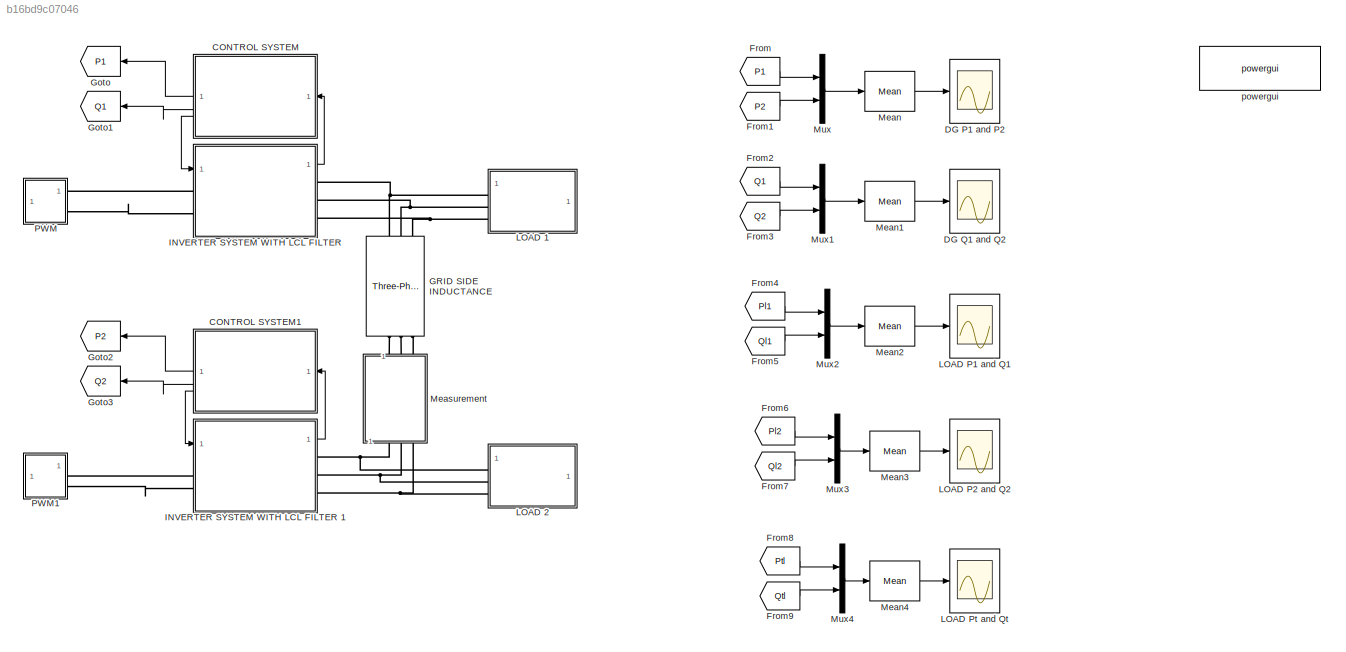
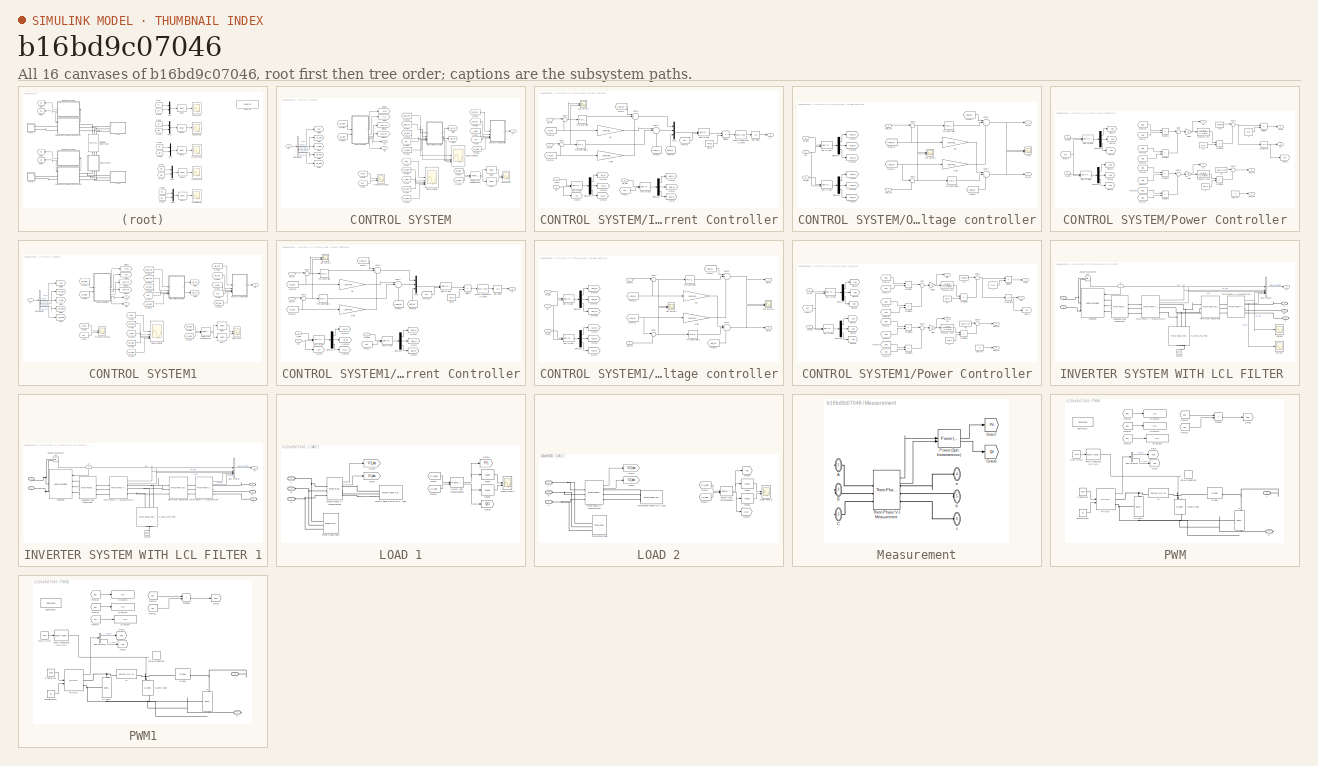
[diagram: thumbnail index - all 16 canvases of the model, root first then tree order]
MODEL slx_b16bd9c07046
KIND model
CONFIG AbsTol = auto
CONFIG EnableMultiTasking = on
CONFIG FixedStep = Ts
CONFIG MaxStep = auto
CONFIG MinStep = auto
CONFIG RelTol = 1e-4
CONFIG SampleTimeConstraint = Unconstrained
CONFIG SolverName = ode3
CONFIG StartTime = 0.0
CONFIG StopTime = 1
BLOCK [SubSystem] CONTROL SYSTEM
  NameLocation = top
BLOCK [BusSelector] CONTROL SYSTEM/Bus Selector
  OutputSignals = Vdc,V0_abc,Il_abc,Vg_abc,Ig_abc
BLOCK [Scope] CONTROL SYSTEM/Frequency and Wt1
  Floating = off
  NumInputPorts = 2
  ScopeSpecificationString = C++SS(StrPVP('Location','[5, 48, 1285, 679]'),StrPVP('Open','off'),MxPVP('AxesTitles',54,'struct(''axes1'',''%<SignalLabel>'',''axes2'',''%<SignalLabel>'')'),MxPVP('ScopeGraphics',57,'struct(''FigureColor'',''[0.5 0.5 0.5]'',''AxesColor'',''[0 0 0]'',''AxesTickColor'',''[1 1 1]'',''LineColors'',''[1 1 0;1 0 1;0 1 1;1 0 0;0 1 0;0 0 1]'',''LineStyles'',''-|-|-|-|-|-'',''LineWidths'',''[0.5 0.5 0.5 0...<+303ch>
BLOCK [From] CONTROL SYSTEM/From1
  GotoTag = Il_abc
BLOCK [From] CONTROL SYSTEM/From10
  GotoTag = Ig_abc
BLOCK [From] CONTROL SYSTEM/From11
  GotoTag = Ig_abc
BLOCK [From] CONTROL SYSTEM/From12
  GotoTag = Ild_ref
BLOCK [From] CONTROL SYSTEM/From13
  GotoTag = Ig_abc
BLOCK [From] CONTROL SYSTEM/From14
  GotoTag = V0d_ref
BLOCK [From] CONTROL SYSTEM/From15
  GotoTag = Vg_abc
BLOCK [From] CONTROL SYSTEM/From16
  GotoTag = Ig_abc
BLOCK [From] CONTROL SYSTEM/From17
  GotoTag = V0q_ref
BLOCK [From] CONTROL SYSTEM/From18
  GotoTag = V0_abc
BLOCK [From] CONTROL SYSTEM/From2
  GotoTag = Wt
BLOCK [From] CONTROL SYSTEM/From21
  GotoTag = V0_abc
BLOCK [From] CONTROL SYSTEM/From22
  GotoTag = Wt
BLOCK [From] CONTROL SYSTEM/From23
  GotoTag = Ilq_ref
BLOCK [From] CONTROL SYSTEM/From3
  GotoTag = Freq
BLOCK [From] CONTROL SYSTEM/From4
  GotoTag = V0_abc
BLOCK [From] CONTROL SYSTEM/From5
  GotoTag = Wt
BLOCK [From] CONTROL SYSTEM/From6
  GotoTag = Vg_abc
BLOCK [From] CONTROL SYSTEM/From7
  GotoTag = Vdc
BLOCK [From] CONTROL SYSTEM/From8
  GotoTag = V0_abc
BLOCK [From] CONTROL SYSTEM/From9
  GotoTag = Il_abc
BLOCK [Outport] CONTROL SYSTEM/G
  Port = 3
BLOCK [Goto] CONTROL SYSTEM/Goto
  GotoTag = V0_abc
BLOCK [Goto] CONTROL SYSTEM/Goto1
  GotoTag = Il_abc
BLOCK [Goto] CONTROL SYSTEM/Goto14
  GotoTag = V0q_ref
BLOCK [Goto] CONTROL SYSTEM/Goto2
  GotoTag = Wt
BLOCK [Goto] CONTROL SYSTEM/Goto20
  GotoTag = V0d_ref
BLOCK [Goto] CONTROL SYSTEM/Goto21
  GotoTag = Freq
  NameLocation = top
BLOCK [Goto] CONTROL SYSTEM/Goto4
  GotoTag = Vg_abc
BLOCK [Goto] CONTROL SYSTEM/Goto5
  GotoTag = Ig_abc
BLOCK [Goto] CONTROL SYSTEM/Goto6
  GotoTag = Vdc
BLOCK [Goto] CONTROL SYSTEM/Goto7
  GotoTag = Ild_ref
BLOCK [Goto] CONTROL SYSTEM/Goto8
  GotoTag = Ilq_ref
BLOCK [SubSystem] CONTROL SYSTEM/Inner Current Controller
BLOCK [Scope] CONTROL SYSTEM/Inner Current Controller/DQ Errors
  Floating = off
  NumInputPorts = 2
  ScopeSpecificationString = C++SS(StrPVP('Location','[5, 48, 1285, 679]'),StrPVP('Open','off'),StrPVP('ZoomMode','xonly'),MxPVP('AxesTitles',54,'struct(''axes1'',''%<SignalLabel>'',''axes2'',''%<SignalLabel>'')'),MxPVP('ScopeGraphics',57,'struct(''FigureColor'',''[0.5 0.5 0.5]'',''AxesColor'',''[0 0 0]'',''AxesTickColor'',''[1 1 1]'',''LineColors'',''[1 1 0;1 0 1;0 1 1;1 0 0;0 1 0;0 0 1]'',''LineStyles'',''-|-|-|-|-|-'',''Li...<+327ch>
BLOCK [Demux] CONTROL SYSTEM/Inner Current Controller/Demux1
  Outputs = 3
BLOCK [Demux] CONTROL SYSTEM/Inner Current Controller/Demux2
  Outputs = 3
BLOCK [Product] CONTROL SYSTEM/Inner Current Controller/Divide2
  Inputs = */
BLOCK [From] CONTROL SYSTEM/Inner Current Controller/From1
  GotoTag = Wt
BLOCK [From] CONTROL SYSTEM/Inner Current Controller/From15
  GotoTag = Wt
BLOCK [From] CONTROL SYSTEM/Inner Current Controller/From19
  GotoTag = Ild_W
BLOCK [From] CONTROL SYSTEM/Inner Current Controller/From2
  GotoTag = Vgd_W
BLOCK [From] CONTROL SYSTEM/Inner Current Controller/From24
  GotoTag = Ilq_W
BLOCK [From] CONTROL SYSTEM/Inner Current Controller/From25
  GotoTag = Vg0_W
  NameLocation = right
BLOCK [From] CONTROL SYSTEM/Inner Current Controller/From3
  GotoTag = Vgq_W
  NameLocation = left
BLOCK [Outport] CONTROL SYSTEM/Inner Current Controller/G
BLOCK [Gain] CONTROL SYSTEM/Inner Current Controller/Gain
  Gain = 2*pi*50*2*10^-3
BLOCK [Goto] CONTROL SYSTEM/Inner Current Controller/Goto1
  GotoTag = Wt
BLOCK [Goto] CONTROL SYSTEM/Inner Current Controller/Goto11
  GotoTag = Ild_W
BLOCK [Goto] CONTROL SYSTEM/Inner Current Controller/Goto12
  GotoTag = Ilq_W
BLOCK [Goto] CONTROL SYSTEM/Inner Current Controller/Goto13
  GotoTag = Il0_W
BLOCK [Goto] CONTROL SYSTEM/Inner Current Controller/Goto3
  GotoTag = Vgd_W
BLOCK [Goto] CONTROL SYSTEM/Inner Current Controller/Goto4
  GotoTag = Vgq_W
BLOCK [Goto] CONTROL SYSTEM/Inner Current Controller/Goto5
  GotoTag = Vg0_W
BLOCK [Inport] CONTROL SYSTEM/Inner Current Controller/Il_abc
  Port = 3
BLOCK [Inport] CONTROL SYSTEM/Inner Current Controller/Ild_ref
BLOCK [Inport] CONTROL SYSTEM/Inner Current Controller/Ilq_ref
  Port = 2
BLOCK [Mux] CONTROL SYSTEM/Inner Current Controller/Mux
  DisplayOption = bar
  Inputs = 3
BLOCK [Reference] CONTROL SYSTEM/Inner Current Controller/PID Controller  REF=slpidlib/PID Controller
  SourceBlock = slpidlib/PID Controller
  SourceType = PID 1dof
BLOCK [Reference] CONTROL SYSTEM/Inner Current Controller/PID Controller1  REF=slpidlib/PID Controller
  SourceBlock = slpidlib/PID Controller
  SourceType = PID 1dof
BLOCK [Reference] CONTROL SYSTEM/Inner Current Controller/PWM Generator (2-Level)  REF=spsPWMGenerator2LevelLib/PWM Generator
(2-Level)
  LibrarySourceBlock = sps_lib/Power Electronics/Power Electronics Control/PWM Generator\n(2-Level)
  SourceBlock = spsPWMGenerator2LevelLib/PWM Generator\n(2-Level)
  SourceType = PWM Generator (2-Level)
BLOCK [Sum] CONTROL SYSTEM/Inner Current Controller/Sum1
  Inputs = |+-
BLOCK [Sum] CONTROL SYSTEM/Inner Current Controller/Sum2
  Inputs = |+-
BLOCK [Sum] CONTROL SYSTEM/Inner Current Controller/Sum3
  Inputs = |++-
BLOCK [Sum] CONTROL SYSTEM/Inner Current Controller/Sum4
  Inputs = |+++
BLOCK [UnitDelay] CONTROL SYSTEM/Inner Current Controller/Unit Delay
  HasFrameUpgradeWarning = on
  SampleTime = -1
BLOCK [Constant] CONTROL SYSTEM/Inner Current Controller/Vdc//2
  SampleTime = Ts
  Value = 700/2
BLOCK [Inport] CONTROL SYSTEM/Inner Current Controller/Vg_abc
  Port = 5
BLOCK [Inport] CONTROL SYSTEM/Inner Current Controller/Wt
  Port = 4
BLOCK [Reference] CONTROL SYSTEM/Inner Current Controller/abc to dq0  REF=spsabctodq0Lib/abc to dq0
  LibrarySourceBlock = sps_lib/Control/abc to dq0
  SourceBlock = spsabctodq0Lib/abc to dq0
  SourceType = abc to dq0 Transformation
BLOCK [Reference] CONTROL SYSTEM/Inner Current Controller/abc to dq1  REF=spsabctodq0Lib/abc to dq0
  LibrarySourceBlock = sps_lib/Control/abc to dq0
  SourceBlock = spsabctodq0Lib/abc to dq0
  SourceType = abc to dq0 Transformation
BLOCK [Reference] CONTROL SYSTEM/Inner Current Controller/dq0 to abc  REF=spsdq0toabcLib/dq0 to abc
  LibrarySourceBlock = sps_lib/Control/dq0 to abc
  SourceBlock = spsdq0toabcLib/dq0 to abc
  SourceType = dq0 to abc Transformation
BLOCK [Gain] CONTROL SYSTEM/Inner Current Controller/wL
  Gain = 2*pi*50*2*10^-3
BLOCK [Inport] CONTROL SYSTEM/M
BLOCK [Reference] CONTROL SYSTEM/Mean  REF=spsMeanLib/Mean
  LibrarySourceBlock = sps_lib/Sensors and Measurements/Mean
  SourceBlock = spsMeanLib/Mean
  SourceType = Mean
BLOCK [Scope] CONTROL SYSTEM/Mean Pand Q
  Floating = off
  NumInputPorts = 2
  ScopeSpecificationString = C++SS(StrPVP('Location','[5, 48, 1285, 679]'),StrPVP('Open','off'),StrPVP('ZoomMode','yonly'),MxPVP('AxesTitles',54,'struct(''axes1'',''%<SignalLabel>'',''axes2'',''%<SignalLabel>'')'),MxPVP('ScopeGraphics',57,'struct(''FigureColor'',''[0.5 0.5 0.5]'',''AxesColor'',''[0 0 0]'',''AxesTickColor'',''[1 1 1]'',''LineColors'',''[1 1 0;1 0 1;0 1 1;1 0 0;0 1 0;0 0 1]'',''LineStyles'',''-|-|-|-|-|-'',''Li...<+331ch>  <repeated x3 — deduplicated; at blocks: Mean Pand Q, DQ Errors>
BLOCK [Reference] CONTROL SYSTEM/Mean1  REF=spsMeanLib/Mean
  LibrarySourceBlock = sps_lib/Sensors and Measurements/Mean
  SourceBlock = spsMeanLib/Mean
  SourceType = Mean
BLOCK [Scope] CONTROL SYSTEM/Measurements
  Floating = off
  NumInputPorts = 5
  ScopeSpecificationString = C++SS(StrPVP('Location','[6, 48, 1286, 679]'),StrPVP('Open','off'),StrPVP('ZoomMode','yonly'),MxPVP('AxesTitles',54,'struct(''axes1'',''%<SignalLabel>'',''axes2'',''%<SignalLabel>'',''axes3'',''%<SignalLabel>'',''axes4'',''%<SignalLabel>'',''axes5'',''%<SignalLabel>'')'),MxPVP('ScopeGraphics',57,'struct(''FigureColor'',''[0.5 0.5 0.5]'',''AxesColor'',''[0 0 0]'',''AxesTickColor'',''[1 1 1]'',''Lin...<+408ch>
BLOCK [Scope] CONTROL SYSTEM/Measurements1
  Floating = off
  NumInputPorts = 5
  ScopeSpecificationString = C++SS(StrPVP('Location','[6, 48, 1286, 679]'),StrPVP('Open','off'),StrPVP('ZoomMode','yonly'),MxPVP('AxesTitles',54,'struct(''axes1'',''%<SignalLabel>'',''axes2'',''%<SignalLabel>'',''axes3'',''%<SignalLabel>'',''axes4'',''%<SignalLabel>'',''axes5'',''%<SignalLabel>'')'),MxPVP('ScopeGraphics',57,'struct(''FigureColor'',''[0.5 0.5 0.5]'',''AxesColor'',''[0 0 0]'',''AxesTickColor'',''[1 1 1]'',''Lin...<+441ch>
BLOCK [SubSystem] CONTROL SYSTEM/Outer Voltage controller
BLOCK [Scope] CONTROL SYSTEM/Outer Voltage controller/DQ Errors
  Floating = off
  NumInputPorts = 2
BLOCK [Demux] CONTROL SYSTEM/Outer Voltage controller/Demux1
  Outputs = 3
BLOCK [Demux] CONTROL SYSTEM/Outer Voltage controller/Demux4
  Outputs = 3
BLOCK [From] CONTROL SYSTEM/Outer Voltage controller/From1
  GotoTag = Igd_W
BLOCK [From] CONTROL SYSTEM/Outer Voltage controller/From12
  GotoTag = V0d_W
BLOCK [From] CONTROL SYSTEM/Outer Voltage controller/From2
  GotoTag = Igq_W
BLOCK [From] CONTROL SYSTEM/Outer Voltage controller/From23
  GotoTag = V0q_W
BLOCK [Gain] CONTROL SYSTEM/Outer Voltage controller/Gain
  Gain = 2*pi*50*15*10^-6
BLOCK [Goto] CONTROL SYSTEM/Outer Voltage controller/Goto1
  GotoTag = Igd_W
BLOCK [Goto] CONTROL SYSTEM/Outer Voltage controller/Goto17
  GotoTag = V0d_W
BLOCK [Goto] CONTROL SYSTEM/Outer Voltage controller/Goto18
  GotoTag = V0q_W
BLOCK [Goto] CONTROL SYSTEM/Outer Voltage controller/Goto19
  GotoTag = V00_W
BLOCK [Goto] CONTROL SYSTEM/Outer Voltage controller/Goto2
  GotoTag = Igq_W
BLOCK [Goto] CONTROL SYSTEM/Outer Voltage controller/Goto3
  GotoTag = Ig0_W
BLOCK [Inport] CONTROL SYSTEM/Outer Voltage controller/Ig_abc
  Port = 5
BLOCK [Scope] CONTROL SYSTEM/Outer Voltage controller/Il ref
  Floating = off
  NumInputPorts = 2
  ScopeSpecificationString = C++SS(StrPVP('Location','[5, 48, 1285, 679]'),StrPVP('Open','off'),StrPVP('ZoomMode','yonly'),MxPVP('AxesTitles',54,'struct(''axes1'',''%<SignalLabel>'',''axes2'',''%<SignalLabel>'')'),MxPVP('ScopeGraphics',57,'struct(''FigureColor'',''[0.5 0.5 0.5]'',''AxesColor'',''[0 0 0]'',''AxesTickColor'',''[1 1 1]'',''LineColors'',''[1 1 0;1 0 1;0 1 1;1 0 0;0 1 0;0 0 1]'',''LineStyles'',''-|-|-|-|-|-'',''Li...<+336ch>
BLOCK [Outport] CONTROL SYSTEM/Outer Voltage controller/Ild_ref
BLOCK [Outport] CONTROL SYSTEM/Outer Voltage controller/Ilq_ref
  Port = 2
BLOCK [Reference] CONTROL SYSTEM/Outer Voltage controller/PID Controller  REF=slpidlib/PID Controller
  SourceBlock = slpidlib/PID Controller
  SourceType = PID 1dof
BLOCK [Reference] CONTROL SYSTEM/Outer Voltage controller/PID Controller1  REF=slpidlib/PID Controller
  SourceBlock = slpidlib/PID Controller
  SourceType = PID 1dof
BLOCK [Sum] CONTROL SYSTEM/Outer Voltage controller/Sum1
  Inputs = |-+
BLOCK [Sum] CONTROL SYSTEM/Outer Voltage controller/Sum2
  Inputs = |+-
BLOCK [Sum] CONTROL SYSTEM/Outer Voltage controller/Sum3
  Inputs = |++-
BLOCK [Sum] CONTROL SYSTEM/Outer Voltage controller/Sum4
  Inputs = |+++
BLOCK [Inport] CONTROL SYSTEM/Outer Voltage controller/V0_abc
  Port = 3
BLOCK [Inport] CONTROL SYSTEM/Outer Voltage controller/V0d_ref
BLOCK [Inport] CONTROL SYSTEM/Outer Voltage controller/V0q_ref
  Port = 2
BLOCK [Inport] CONTROL SYSTEM/Outer Voltage controller/Wt
  Port = 4
BLOCK [Reference] CONTROL SYSTEM/Outer Voltage controller/abc to dq1  REF=spsabctodq0Lib/abc to dq0
  LibrarySourceBlock = sps_lib/Control/abc to dq0
  SourceBlock = spsabctodq0Lib/abc to dq0
  SourceType = abc to dq0 Transformation
BLOCK [Reference] CONTROL SYSTEM/Outer Voltage controller/abc to dq3  REF=spsabctodq0Lib/abc to dq0
  LibrarySourceBlock = sps_lib/Control/abc to dq0
  SourceBlock = spsabctodq0Lib/abc to dq0
  SourceType = abc to dq0 Transformation
BLOCK [Gain] CONTROL SYSTEM/Outer Voltage controller/wC
  Gain = 2*pi*50*15*10^-6
BLOCK [Outport] CONTROL SYSTEM/P1
BLOCK [Reference] CONTROL SYSTEM/Power (3ph, Instantaneous)  REF=spsPower3phInstantaneousLib/Power
(3ph, Instantaneous)
  LibrarySourceBlock = sps_lib/Sensors and Measurements/Power\n(3ph, Instantaneous)
  SourceBlock = spsPower3phInstantaneousLib/Power\n(3ph, Instantaneous)
  SourceType = Power (3ph, Instantaneous)
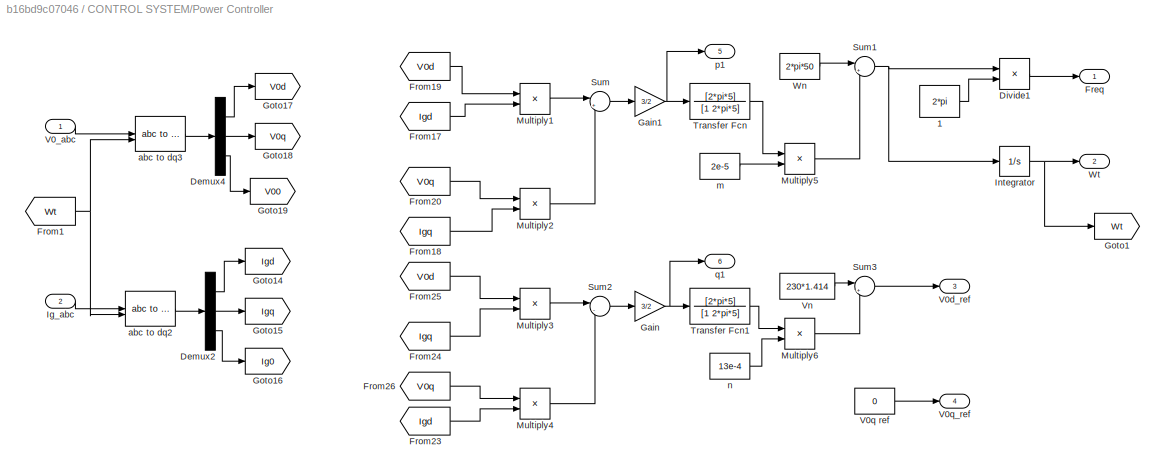
BLOCK [SubSystem] CONTROL SYSTEM/Power Controller
BLOCK [Constant] CONTROL SYSTEM/Power Controller/1
  NameLocation = top
  SampleTime = Ts
  Value = 2*pi
BLOCK [Demux] CONTROL SYSTEM/Power Controller/Demux2
  Outputs = 3
BLOCK [Demux] CONTROL SYSTEM/Power Controller/Demux4
  Outputs = 3
BLOCK [Product] CONTROL SYSTEM/Power Controller/Divide1
  Inputs = */
  NameLocation = top
BLOCK [Outport] CONTROL SYSTEM/Power Controller/Freq
BLOCK [From] CONTROL SYSTEM/Power Controller/From1
  GotoTag = Wt
  NameLocation = top
BLOCK [From] CONTROL SYSTEM/Power Controller/From17
  GotoTag = Igd
BLOCK [From] CONTROL SYSTEM/Power Controller/From18
  GotoTag = Igq
  NameLocation = top
BLOCK [From] CONTROL SYSTEM/Power Controller/From19
  GotoTag = V0d
BLOCK [From] CONTROL SYSTEM/Power Controller/From20
  GotoTag = V0q
  NameLocation = top
BLOCK [From] CONTROL SYSTEM/Power Controller/From23
  GotoTag = Igd
BLOCK [From] CONTROL SYSTEM/Power Controller/From24
  GotoTag = Igq
  NameLocation = top
BLOCK [From] CONTROL SYSTEM/Power Controller/From25
  GotoTag = V0d
BLOCK [From] CONTROL SYSTEM/Power Controller/From26
  GotoTag = V0q
  NameLocation = top
BLOCK [Gain] CONTROL SYSTEM/Power Controller/Gain
  Gain = 3/2
BLOCK [Gain] CONTROL SYSTEM/Power Controller/Gain1
  Gain = 3/2
BLOCK [Goto] CONTROL SYSTEM/Power Controller/Goto1
  GotoTag = Wt
BLOCK [Goto] CONTROL SYSTEM/Power Controller/Goto14
  GotoTag = Igd
BLOCK [Goto] CONTROL SYSTEM/Power Controller/Goto15
  GotoTag = Igq
BLOCK [Goto] CONTROL SYSTEM/Power Controller/Goto16
  GotoTag = Ig0
BLOCK [Goto] CONTROL SYSTEM/Power Controller/Goto17
  GotoTag = V0d
BLOCK [Goto] CONTROL SYSTEM/Power Controller/Goto18
  GotoTag = V0q
BLOCK [Goto] CONTROL SYSTEM/Power Controller/Goto19
  GotoTag = V00
BLOCK [Inport] CONTROL SYSTEM/Power Controller/Ig_abc
  Port = 2
BLOCK [Integrator] CONTROL SYSTEM/Power Controller/Integrator
BLOCK [Product] CONTROL SYSTEM/Power Controller/Multiply1
  Inputs = **
BLOCK [Product] CONTROL SYSTEM/Power Controller/Multiply2
  Inputs = **
BLOCK [Product] CONTROL SYSTEM/Power Controller/Multiply3
  Inputs = **
BLOCK [Product] CONTROL SYSTEM/Power Controller/Multiply4
  Inputs = **
BLOCK [Product] CONTROL SYSTEM/Power Controller/Multiply5
  Inputs = **
BLOCK [Product] CONTROL SYSTEM/Power Controller/Multiply6
  Inputs = **
BLOCK [Sum] CONTROL SYSTEM/Power Controller/Sum
  Inputs = |++
BLOCK [Sum] CONTROL SYSTEM/Power Controller/Sum1
  Inputs = |+-
BLOCK [Sum] CONTROL SYSTEM/Power Controller/Sum2
  Inputs = |-+
BLOCK [Sum] CONTROL SYSTEM/Power Controller/Sum3
  Inputs = |+-
BLOCK [TransferFcn] CONTROL SYSTEM/Power Controller/Transfer Fcn
  Denominator = [1 2*pi*5]
  Numerator = [2*pi*5]
BLOCK [TransferFcn] CONTROL SYSTEM/Power Controller/Transfer Fcn1
  Denominator = [1 2*pi*5]
  Numerator = [2*pi*5]
BLOCK [Inport] CONTROL SYSTEM/Power Controller/V0_abc
BLOCK [Outport] CONTROL SYSTEM/Power Controller/V0d_ref
  Port = 3
BLOCK [Constant] CONTROL SYSTEM/Power Controller/V0q ref
  SampleTime = Ts
  Value = 0
BLOCK [Outport] CONTROL SYSTEM/Power Controller/V0q_ref
  Port = 4
BLOCK [Constant] CONTROL SYSTEM/Power Controller/Vn
  SampleTime = Ts
  Value = 230*1.414
BLOCK [Constant] CONTROL SYSTEM/Power Controller/Wn
  SampleTime = Ts
  Value = 2*pi*50
BLOCK [Outport] CONTROL SYSTEM/Power Controller/Wt
  Port = 2
BLOCK [Reference] CONTROL SYSTEM/Power Controller/abc to dq2  REF=spsabctodq0Lib/abc to dq0
  LibrarySourceBlock = sps_lib/Control/abc to dq0
  SourceBlock = spsabctodq0Lib/abc to dq0
  SourceType = abc to dq0 Transformation
BLOCK [Reference] CONTROL SYSTEM/Power Controller/abc to dq3  REF=spsabctodq0Lib/abc to dq0
  LibrarySourceBlock = sps_lib/Control/abc to dq0
  SourceBlock = spsabctodq0Lib/abc to dq0
  SourceType = abc to dq0 Transformation
BLOCK [Constant] CONTROL SYSTEM/Power Controller/m
  SampleTime = Ts
  Value = 2e-5
BLOCK [Constant] CONTROL SYSTEM/Power Controller/n
  SampleTime = Ts
  Value = 13e-4
BLOCK [Outport] CONTROL SYSTEM/Power Controller/p1
  Port = 5
BLOCK [Outport] CONTROL SYSTEM/Power Controller/q1
  Port = 6
BLOCK [Outport] CONTROL SYSTEM/Q1
  Port = 2
BLOCK [SubSystem] CONTROL SYSTEM1
  NameLocation = top
BLOCK [BusSelector] CONTROL SYSTEM1/Bus Selector
  OutputSignals = Vdc,V0_abc,Il_abc,Vg_abc,Ig_abc
BLOCK [Scope] CONTROL SYSTEM1/Frequency and Wt1
  Floating = off
  NumInputPorts = 2
  ScopeSpecificationString = C++SS(StrPVP('Location','[1, 48, 1281, 679]'),StrPVP('Open','off'),MxPVP('AxesTitles',54,'struct(''axes1'',''%<SignalLabel>'',''axes2'',''%<SignalLabel>'')'),MxPVP('ScopeGraphics',57,'struct(''FigureColor'',''[0.5 0.5 0.5]'',''AxesColor'',''[0 0 0]'',''AxesTickColor'',''[1 1 1]'',''LineColors'',''[1 1 0;1 0 1;0 1 1;1 0 0;0 1 0;0 0 1]'',''LineStyles'',''-|-|-|-|-|-'',''LineWidths'',''[0.5 0.5 0.5 0...<+303ch>
BLOCK [From] CONTROL SYSTEM1/From1
  GotoTag = Il_abc
BLOCK [From] CONTROL SYSTEM1/From10
  GotoTag = Ig_abc
BLOCK [From] CONTROL SYSTEM1/From11
  GotoTag = Ig_abc
BLOCK [From] CONTROL SYSTEM1/From12
  GotoTag = Ild_ref
BLOCK [From] CONTROL SYSTEM1/From13
  GotoTag = Ig_abc
BLOCK [From] CONTROL SYSTEM1/From14
  GotoTag = V0d_ref
BLOCK [From] CONTROL SYSTEM1/From15
  GotoTag = Vg_abc
BLOCK [From] CONTROL SYSTEM1/From16
  GotoTag = Ig_abc
BLOCK [From] CONTROL SYSTEM1/From17
  GotoTag = V0q_ref
BLOCK [From] CONTROL SYSTEM1/From18
  GotoTag = V0_abc
BLOCK [From] CONTROL SYSTEM1/From2
  GotoTag = Wt
BLOCK [From] CONTROL SYSTEM1/From21
  GotoTag = V0_abc
BLOCK [From] CONTROL SYSTEM1/From22
  GotoTag = Wt
BLOCK [From] CONTROL SYSTEM1/From23
  GotoTag = Ilq_ref
BLOCK [From] CONTROL SYSTEM1/From3
  GotoTag = Freq
BLOCK [From] CONTROL SYSTEM1/From4
  GotoTag = V0_abc
BLOCK [From] CONTROL SYSTEM1/From5
  GotoTag = Wt
BLOCK [From] CONTROL SYSTEM1/From6
  GotoTag = Vg_abc
BLOCK [From] CONTROL SYSTEM1/From7
  GotoTag = Vdc
BLOCK [From] CONTROL SYSTEM1/From8
  GotoTag = V0_abc
BLOCK [From] CONTROL SYSTEM1/From9
  GotoTag = Il_abc
BLOCK [Outport] CONTROL SYSTEM1/G
  Port = 3
BLOCK [Goto] CONTROL SYSTEM1/Goto
  GotoTag = V0_abc
BLOCK [Goto] CONTROL SYSTEM1/Goto1
  GotoTag = Il_abc
BLOCK [Goto] CONTROL SYSTEM1/Goto14
  GotoTag = V0q_ref
BLOCK [Goto] CONTROL SYSTEM1/Goto2
  GotoTag = Wt
BLOCK [Goto] CONTROL SYSTEM1/Goto20
  GotoTag = V0d_ref
BLOCK [Goto] CONTROL SYSTEM1/Goto21
  GotoTag = Freq
  NameLocation = top
BLOCK [Goto] CONTROL SYSTEM1/Goto4
  GotoTag = Vg_abc
BLOCK [Goto] CONTROL SYSTEM1/Goto5
  GotoTag = Ig_abc
BLOCK [Goto] CONTROL SYSTEM1/Goto6
  GotoTag = Vdc
BLOCK [Goto] CONTROL SYSTEM1/Goto7
  GotoTag = Ild_ref
BLOCK [Goto] CONTROL SYSTEM1/Goto8
  GotoTag = Ilq_ref
BLOCK [SubSystem] CONTROL SYSTEM1/Inner Current Controller
BLOCK [Scope] CONTROL SYSTEM1/Inner Current Controller/DQ Errors
  Floating = off
  NumInputPorts = 2
  ScopeSpecificationString = C++SS(StrPVP('Location','[1, 48, 1281, 679]'),StrPVP('Open','off'),StrPVP('ZoomMode','xonly'),MxPVP('AxesTitles',54,'struct(''axes1'',''%<SignalLabel>'',''axes2'',''%<SignalLabel>'')'),MxPVP('ScopeGraphics',57,'struct(''FigureColor'',''[0.5 0.5 0.5]'',''AxesColor'',''[0 0 0]'',''AxesTickColor'',''[1 1 1]'',''LineColors'',''[1 1 0;1 0 1;0 1 1;1 0 0;0 1 0;0 0 1]'',''LineStyles'',''-|-|-|-|-|-'',''Li...<+327ch>
BLOCK [Demux] CONTROL SYSTEM1/Inner Current Controller/Demux1
  Outputs = 3
BLOCK [Demux] CONTROL SYSTEM1/Inner Current Controller/Demux2
  Outputs = 3
BLOCK [Product] CONTROL SYSTEM1/Inner Current Controller/Divide2
  Inputs = */
BLOCK [From] CONTROL SYSTEM1/Inner Current Controller/From1
  GotoTag = Wt
BLOCK [From] CONTROL SYSTEM1/Inner Current Controller/From15
  GotoTag = Wt
BLOCK [From] CONTROL SYSTEM1/Inner Current Controller/From19
  GotoTag = Ild_W
BLOCK [From] CONTROL SYSTEM1/Inner Current Controller/From2
  GotoTag = Vgd_W
BLOCK [From] CONTROL SYSTEM1/Inner Current Controller/From24
  GotoTag = Ilq_W
BLOCK [From] CONTROL SYSTEM1/Inner Current Controller/From25
  GotoTag = Vg0_W
  NameLocation = right
BLOCK [From] CONTROL SYSTEM1/Inner Current Controller/From3
  GotoTag = Vgq_W
  NameLocation = left
BLOCK [Outport] CONTROL SYSTEM1/Inner Current Controller/G
BLOCK [Gain] CONTROL SYSTEM1/Inner Current Controller/Gain
  Gain = 2*pi*50*2*10^-3
BLOCK [Goto] CONTROL SYSTEM1/Inner Current Controller/Goto1
  GotoTag = Wt
BLOCK [Goto] CONTROL SYSTEM1/Inner Current Controller/Goto11
  GotoTag = Ild_W
BLOCK [Goto] CONTROL SYSTEM1/Inner Current Controller/Goto12
  GotoTag = Ilq_W
BLOCK [Goto] CONTROL SYSTEM1/Inner Current Controller/Goto13
  GotoTag = Il0_W
BLOCK [Goto] CONTROL SYSTEM1/Inner Current Controller/Goto3
  GotoTag = Vgd_W
BLOCK [Goto] CONTROL SYSTEM1/Inner Current Controller/Goto4
  GotoTag = Vgq_W
BLOCK [Goto] CONTROL SYSTEM1/Inner Current Controller/Goto5
  GotoTag = Vg0_W
BLOCK [Inport] CONTROL SYSTEM1/Inner Current Controller/Il_abc
  Port = 3
BLOCK [Inport] CONTROL SYSTEM1/Inner Current Controller/Ild_ref
BLOCK [Inport] CONTROL SYSTEM1/Inner Current Controller/Ilq_ref
  Port = 2
BLOCK [Mux] CONTROL SYSTEM1/Inner Current Controller/Mux
  DisplayOption = bar
  Inputs = 3
BLOCK [Reference] CONTROL SYSTEM1/Inner Current Controller/PID Controller  REF=slpidlib/PID Controller
  SourceBlock = slpidlib/PID Controller
  SourceType = PID 1dof
BLOCK [Reference] CONTROL SYSTEM1/Inner Current Controller/PID Controller1  REF=slpidlib/PID Controller
  SourceBlock = slpidlib/PID Controller
  SourceType = PID 1dof
BLOCK [Reference] CONTROL SYSTEM1/Inner Current Controller/PWM Generator (2-Level)  REF=spsPWMGenerator2LevelLib/PWM Generator
(2-Level)
  LibrarySourceBlock = sps_lib/Power Electronics/Power Electronics Control/PWM Generator\n(2-Level)
  SourceBlock = spsPWMGenerator2LevelLib/PWM Generator\n(2-Level)
  SourceType = PWM Generator (2-Level)
BLOCK [Sum] CONTROL SYSTEM1/Inner Current Controller/Sum1
  Inputs = |+-
BLOCK [Sum] CONTROL SYSTEM1/Inner Current Controller/Sum2
  Inputs = |+-
BLOCK [Sum] CONTROL SYSTEM1/Inner Current Controller/Sum3
  Inputs = |++-
BLOCK [Sum] CONTROL SYSTEM1/Inner Current Controller/Sum4
  Inputs = |+++
BLOCK [UnitDelay] CONTROL SYSTEM1/Inner Current Controller/Unit Delay
  HasFrameUpgradeWarning = on
  SampleTime = -1
BLOCK [Constant] CONTROL SYSTEM1/Inner Current Controller/Vdc//2
  SampleTime = Ts
  Value = 700/2
BLOCK [Inport] CONTROL SYSTEM1/Inner Current Controller/Vg_abc
  Port = 5
BLOCK [Inport] CONTROL SYSTEM1/Inner Current Controller/Wt
  Port = 4
BLOCK [Reference] CONTROL SYSTEM1/Inner Current Controller/abc to dq0  REF=spsabctodq0Lib/abc to dq0
  LibrarySourceBlock = sps_lib/Control/abc to dq0
  SourceBlock = spsabctodq0Lib/abc to dq0
  SourceType = abc to dq0 Transformation
BLOCK [Reference] CONTROL SYSTEM1/Inner Current Controller/abc to dq1  REF=spsabctodq0Lib/abc to dq0
  LibrarySourceBlock = sps_lib/Control/abc to dq0
  SourceBlock = spsabctodq0Lib/abc to dq0
  SourceType = abc to dq0 Transformation
BLOCK [Reference] CONTROL SYSTEM1/Inner Current Controller/dq0 to abc  REF=spsdq0toabcLib/dq0 to abc
  LibrarySourceBlock = sps_lib/Control/dq0 to abc
  SourceBlock = spsdq0toabcLib/dq0 to abc
  SourceType = dq0 to abc Transformation
BLOCK [Gain] CONTROL SYSTEM1/Inner Current Controller/wL
  Gain = 2*pi*50*2*10^-3
BLOCK [Inport] CONTROL SYSTEM1/M
BLOCK [Reference] CONTROL SYSTEM1/Mean  REF=spsMeanLib/Mean
  LibrarySourceBlock = sps_lib/Sensors and Measurements/Mean
  SourceBlock = spsMeanLib/Mean
  SourceType = Mean
BLOCK [Scope] CONTROL SYSTEM1/Mean Pand Q
  Floating = off
  NumInputPorts = 2
  ScopeSpecificationString = C++SS(StrPVP('Location','[1, 48, 1281, 679]'),StrPVP('Open','off'),StrPVP('ZoomMode','yonly'),MxPVP('AxesTitles',54,'struct(''axes1'',''%<SignalLabel>'',''axes2'',''%<SignalLabel>'')'),MxPVP('ScopeGraphics',57,'struct(''FigureColor'',''[0.5 0.5 0.5]'',''AxesColor'',''[0 0 0]'',''AxesTickColor'',''[1 1 1]'',''LineColors'',''[1 1 0;1 0 1;0 1 1;1 0 0;0 1 0;0 0 1]'',''LineStyles'',''-|-|-|-|-|-'',''Li...<+335ch>
BLOCK [Reference] CONTROL SYSTEM1/Mean1  REF=spsMeanLib/Mean
  LibrarySourceBlock = sps_lib/Sensors and Measurements/Mean
  SourceBlock = spsMeanLib/Mean
  SourceType = Mean
BLOCK [Scope] CONTROL SYSTEM1/Measurements
  Floating = off
  NumInputPorts = 5
  ScopeSpecificationString = C++SS(StrPVP('Location','[5, 48, 1285, 679]'),StrPVP('Open','off'),StrPVP('ZoomMode','yonly'),MxPVP('AxesTitles',54,'struct(''axes1'',''%<SignalLabel>'',''axes2'',''%<SignalLabel>'',''axes3'',''%<SignalLabel>'',''axes4'',''%<SignalLabel>'',''axes5'',''%<SignalLabel>'')'),MxPVP('ScopeGraphics',57,'struct(''FigureColor'',''[0.5 0.5 0.5]'',''AxesColor'',''[0 0 0]'',''AxesTickColor'',''[1 1 1]'',''Lin...<+408ch>
BLOCK [SubSystem] CONTROL SYSTEM1/Outer Voltage controller
BLOCK [Scope] CONTROL SYSTEM1/Outer Voltage controller/DQ Errors
  Floating = off
  NumInputPorts = 2
  ScopeSpecificationString = C++SS(StrPVP('Location','[1, 48, 1281, 679]'),StrPVP('Open','off'),StrPVP('ZoomMode','yonly'),MxPVP('AxesTitles',54,'struct(''axes1'',''%<SignalLabel>'',''axes2'',''%<SignalLabel>'')'),MxPVP('ScopeGraphics',57,'struct(''FigureColor'',''[0.5 0.5 0.5]'',''AxesColor'',''[0 0 0]'',''AxesTickColor'',''[1 1 1]'',''LineColors'',''[1 1 0;1 0 1;0 1 1;1 0 0;0 1 0;0 0 1]'',''LineStyles'',''-|-|-|-|-|-'',''Li...<+331ch>
BLOCK [Scope] CONTROL SYSTEM1/Outer Voltage controller/DQ Errors1
  Floating = off
  NumInputPorts = 2
  ScopeSpecificationString = C++SS(StrPVP('Location','[5, 48, 1285, 679]'),StrPVP('Open','off'),StrPVP('ZoomMode','yonly'),MxPVP('AxesTitles',54,'struct(''axes1'',''%<SignalLabel>'',''axes2'',''%<SignalLabel>'')'),MxPVP('ScopeGraphics',57,'struct(''FigureColor'',''[0.5 0.5 0.5]'',''AxesColor'',''[0 0 0]'',''AxesTickColor'',''[1 1 1]'',''LineColors'',''[1 1 0;1 0 1;0 1 1;1 0 0;0 1 0;0 0 1]'',''LineStyles'',''-|-|-|-|-|-'',''Li...<+336ch>
BLOCK [Demux] CONTROL SYSTEM1/Outer Voltage controller/Demux1
  Outputs = 3
BLOCK [Demux] CONTROL SYSTEM1/Outer Voltage controller/Demux4
  Outputs = 3
BLOCK [From] CONTROL SYSTEM1/Outer Voltage controller/From1
  GotoTag = Igd_W
BLOCK [From] CONTROL SYSTEM1/Outer Voltage controller/From12
  GotoTag = V0d_W
BLOCK [From] CONTROL SYSTEM1/Outer Voltage controller/From2
  GotoTag = Igq_W
BLOCK [From] CONTROL SYSTEM1/Outer Voltage controller/From23
  GotoTag = V0q_W
BLOCK [Gain] CONTROL SYSTEM1/Outer Voltage controller/Gain
  Gain = 2*pi*50*15*10^-6
BLOCK [Goto] CONTROL SYSTEM1/Outer Voltage controller/Goto1
  GotoTag = Igd_W
BLOCK [Goto] CONTROL SYSTEM1/Outer Voltage controller/Goto17
  GotoTag = V0d_W
BLOCK [Goto] CONTROL SYSTEM1/Outer Voltage controller/Goto18
  GotoTag = V0q_W
BLOCK [Goto] CONTROL SYSTEM1/Outer Voltage controller/Goto19
  GotoTag = V00_W
BLOCK [Goto] CONTROL SYSTEM1/Outer Voltage controller/Goto2
  GotoTag = Igq_W
BLOCK [Goto] CONTROL SYSTEM1/Outer Voltage controller/Goto3
  GotoTag = Ig0_W
BLOCK [Inport] CONTROL SYSTEM1/Outer Voltage controller/Ig_abc
  Port = 5
BLOCK [Outport] CONTROL SYSTEM1/Outer Voltage controller/Ild_ref
BLOCK [Outport] CONTROL SYSTEM1/Outer Voltage controller/Ilq_ref
  Port = 2
BLOCK [Reference] CONTROL SYSTEM1/Outer Voltage controller/PID Controller  REF=slpidlib/PID Controller
  SourceBlock = slpidlib/PID Controller
  SourceType = PID 1dof
BLOCK [Reference] CONTROL SYSTEM1/Outer Voltage controller/PID Controller1  REF=slpidlib/PID Controller
  SourceBlock = slpidlib/PID Controller
  SourceType = PID 1dof
BLOCK [Sum] CONTROL SYSTEM1/Outer Voltage controller/Sum1
  Inputs = |-+
BLOCK [Sum] CONTROL SYSTEM1/Outer Voltage controller/Sum2
  Inputs = |+-
BLOCK [Sum] CONTROL SYSTEM1/Outer Voltage controller/Sum3
  Inputs = |++-
BLOCK [Sum] CONTROL SYSTEM1/Outer Voltage controller/Sum4
  Inputs = |+++
BLOCK [Inport] CONTROL SYSTEM1/Outer Voltage controller/V0_abc
  Port = 3
BLOCK [Inport] CONTROL SYSTEM1/Outer Voltage controller/V0d_ref
BLOCK [Inport] CONTROL SYSTEM1/Outer Voltage controller/V0q_ref
  Port = 2
BLOCK [Inport] CONTROL SYSTEM1/Outer Voltage controller/Wt
  Port = 4
BLOCK [Reference] CONTROL SYSTEM1/Outer Voltage controller/abc to dq1  REF=spsabctodq0Lib/abc to dq0
  LibrarySourceBlock = sps_lib/Control/abc to dq0
  SourceBlock = spsabctodq0Lib/abc to dq0
  SourceType = abc to dq0 Transformation
BLOCK [Reference] CONTROL SYSTEM1/Outer Voltage controller/abc to dq3  REF=spsabctodq0Lib/abc to dq0
  LibrarySourceBlock = sps_lib/Control/abc to dq0
  SourceBlock = spsabctodq0Lib/abc to dq0
  SourceType = abc to dq0 Transformation
BLOCK [Gain] CONTROL SYSTEM1/Outer Voltage controller/wC
  Gain = 2*pi*50*15*10^-6
BLOCK [Outport] CONTROL SYSTEM1/P2
BLOCK [Reference] CONTROL SYSTEM1/Power (3ph, Instantaneous)  REF=spsPower3phInstantaneousLib/Power
(3ph, Instantaneous)
  LibrarySourceBlock = sps_lib/Sensors and Measurements/Power\n(3ph, Instantaneous)
  SourceBlock = spsPower3phInstantaneousLib/Power\n(3ph, Instantaneous)
  SourceType = Power (3ph, Instantaneous)
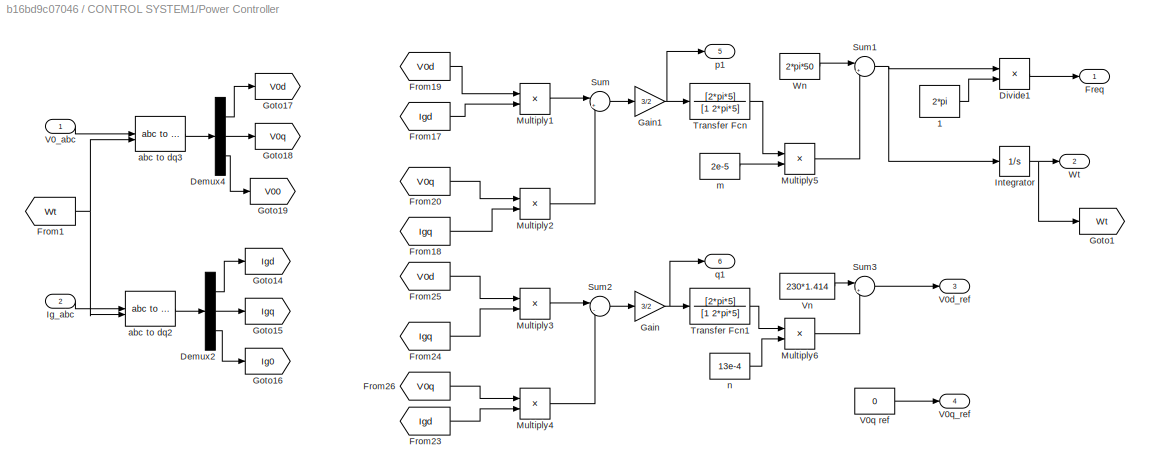
BLOCK [SubSystem] CONTROL SYSTEM1/Power Controller
BLOCK [Constant] CONTROL SYSTEM1/Power Controller/1
  NameLocation = top
  SampleTime = Ts
  Value = 2*pi
BLOCK [Demux] CONTROL SYSTEM1/Power Controller/Demux2
  Outputs = 3
BLOCK [Demux] CONTROL SYSTEM1/Power Controller/Demux4
  Outputs = 3
BLOCK [Product] CONTROL SYSTEM1/Power Controller/Divide1
  Inputs = */
  NameLocation = top
BLOCK [Outport] CONTROL SYSTEM1/Power Controller/Freq
BLOCK [From] CONTROL SYSTEM1/Power Controller/From1
  GotoTag = Wt
  NameLocation = top
BLOCK [From] CONTROL SYSTEM1/Power Controller/From17
  GotoTag = Igd
BLOCK [From] CONTROL SYSTEM1/Power Controller/From18
  GotoTag = Igq
  NameLocation = top
BLOCK [From] CONTROL SYSTEM1/Power Controller/From19
  GotoTag = V0d
BLOCK [From] CONTROL SYSTEM1/Power Controller/From20
  GotoTag = V0q
  NameLocation = top
BLOCK [From] CONTROL SYSTEM1/Power Controller/From23
  GotoTag = Igd
BLOCK [From] CONTROL SYSTEM1/Power Controller/From24
  GotoTag = Igq
  NameLocation = top
BLOCK [From] CONTROL SYSTEM1/Power Controller/From25
  GotoTag = V0d
BLOCK [From] CONTROL SYSTEM1/Power Controller/From26
  GotoTag = V0q
  NameLocation = top
BLOCK [Gain] CONTROL SYSTEM1/Power Controller/Gain
  Gain = 3/2
BLOCK [Gain] CONTROL SYSTEM1/Power Controller/Gain1
  Gain = 3/2
BLOCK [Goto] CONTROL SYSTEM1/Power Controller/Goto1
  GotoTag = Wt
BLOCK [Goto] CONTROL SYSTEM1/Power Controller/Goto14
  GotoTag = Igd
BLOCK [Goto] CONTROL SYSTEM1/Power Controller/Goto15
  GotoTag = Igq
BLOCK [Goto] CONTROL SYSTEM1/Power Controller/Goto16
  GotoTag = Ig0
BLOCK [Goto] CONTROL SYSTEM1/Power Controller/Goto17
  GotoTag = V0d
BLOCK [Goto] CONTROL SYSTEM1/Power Controller/Goto18
  GotoTag = V0q
BLOCK [Goto] CONTROL SYSTEM1/Power Controller/Goto19
  GotoTag = V00
BLOCK [Inport] CONTROL SYSTEM1/Power Controller/Ig_abc
  Port = 2
BLOCK [Integrator] CONTROL SYSTEM1/Power Controller/Integrator
BLOCK [Product] CONTROL SYSTEM1/Power Controller/Multiply1
  Inputs = **
BLOCK [Product] CONTROL SYSTEM1/Power Controller/Multiply2
  Inputs = **
BLOCK [Product] CONTROL SYSTEM1/Power Controller/Multiply3
  Inputs = **
BLOCK [Product] CONTROL SYSTEM1/Power Controller/Multiply4
  Inputs = **
BLOCK [Product] CONTROL SYSTEM1/Power Controller/Multiply5
  Inputs = **
BLOCK [Product] CONTROL SYSTEM1/Power Controller/Multiply6
  Inputs = **
BLOCK [Sum] CONTROL SYSTEM1/Power Controller/Sum
  Inputs = |++
BLOCK [Sum] CONTROL SYSTEM1/Power Controller/Sum1
  Inputs = |+-
BLOCK [Sum] CONTROL SYSTEM1/Power Controller/Sum2
  Inputs = |-+
BLOCK [Sum] CONTROL SYSTEM1/Power Controller/Sum3
  Inputs = |+-
BLOCK [TransferFcn] CONTROL SYSTEM1/Power Controller/Transfer Fcn
  Denominator = [1 2*pi*5]
  Numerator = [2*pi*5]
BLOCK [TransferFcn] CONTROL SYSTEM1/Power Controller/Transfer Fcn1
  Denominator = [1 2*pi*5]
  Numerator = [2*pi*5]
BLOCK [Inport] CONTROL SYSTEM1/Power Controller/V0_abc
BLOCK [Outport] CONTROL SYSTEM1/Power Controller/V0d_ref
  Port = 3
BLOCK [Constant] CONTROL SYSTEM1/Power Controller/V0q ref
  SampleTime = Ts
  Value = 0
BLOCK [Outport] CONTROL SYSTEM1/Power Controller/V0q_ref
  Port = 4
BLOCK [Constant] CONTROL SYSTEM1/Power Controller/Vn
  SampleTime = Ts
  Value = 230*1.414
BLOCK [Constant] CONTROL SYSTEM1/Power Controller/Wn
  SampleTime = Ts
  Value = 2*pi*50
BLOCK [Outport] CONTROL SYSTEM1/Power Controller/Wt
  Port = 2
BLOCK [Reference] CONTROL SYSTEM1/Power Controller/abc to dq2  REF=spsabctodq0Lib/abc to dq0
  LibrarySourceBlock = sps_lib/Control/abc to dq0
  SourceBlock = spsabctodq0Lib/abc to dq0
  SourceType = abc to dq0 Transformation
BLOCK [Reference] CONTROL SYSTEM1/Power Controller/abc to dq3  REF=spsabctodq0Lib/abc to dq0
  LibrarySourceBlock = sps_lib/Control/abc to dq0
  SourceBlock = spsabctodq0Lib/abc to dq0
  SourceType = abc to dq0 Transformation
BLOCK [Constant] CONTROL SYSTEM1/Power Controller/m
  SampleTime = Ts
  Value = 2e-5
BLOCK [Constant] CONTROL SYSTEM1/Power Controller/n
  SampleTime = Ts
  Value = 13e-4
BLOCK [Outport] CONTROL SYSTEM1/Power Controller/p1
  Port = 5
BLOCK [Outport] CONTROL SYSTEM1/Power Controller/q1
  Port = 6
BLOCK [Outport] CONTROL SYSTEM1/Q2
  Port = 2
BLOCK [Scope] DG P1 and P2 
  Floating = off
  NumInputPorts = 1
  ScopeSpecificationString = Simulink.scopes.TimeScopeBlockCfg('CurrentConfiguration', extmgr.ConfigurationSet(extmgr.Configuration('Core','General UI',true,'FigureColor',[1 1 1]),extmgr.Configuration('Core','Source UI',true),extmgr.Configuration('Sources','WiredSimulink',true,'DataLoggingVariableName','ScopeData6','DataLoggingSaveFormat','Array','DataLoggingDecimation','1','DataLoggingDecimateData',true),extmgr.Configuration...<+2097ch>
BLOCK [Scope] DG Q1 and Q2 
  Floating = off
  NumInputPorts = 1
  ScopeSpecificationString = Simulink.scopes.TimeScopeBlockCfg('CurrentConfiguration', extmgr.ConfigurationSet(extmgr.Configuration('Core','General UI',true,'FigureColor',[1 1 1]),extmgr.Configuration('Core','Source UI',true),extmgr.Configuration('Sources','WiredSimulink',true,'DataLoggingVariableName','ScopeData1','DataLoggingSaveFormat','Array','DataLoggingDecimation','1','DataLoggingDecimateData',true),extmgr.Configuration...<+2122ch>
BLOCK [From] From
  GotoTag = P1
  NameLocation = top
BLOCK [From] From1
  GotoTag = P2
BLOCK [From] From2
  GotoTag = Q1
  NameLocation = top
BLOCK [From] From3
  GotoTag = Q2
BLOCK [From] From4
  GotoTag = Pl1
  NameLocation = top
  TagVisibility = global
BLOCK [From] From5
  GotoTag = Ql1
  TagVisibility = global
BLOCK [From] From6
  GotoTag = Pl2
  NameLocation = top
  TagVisibility = global
BLOCK [From] From7
  GotoTag = Ql2
  TagVisibility = global
BLOCK [From] From8
  GotoTag = Ptl
  NameLocation = top
  TagVisibility = global
BLOCK [From] From9
  GotoTag = Qtl
  TagVisibility = global
BLOCK [Reference] GRID SIDE INDUCTANCE  REF=spsThreePhaseSeriesRLCBranchLib/Three-Phase
Series RLC Branch
  AttributesFormatString = \n
  LibrarySourceBlock = sps_lib/Passives/Three-Phase\nSeries RLC Branch
  NameLocation = right
  SourceBlock = spsThreePhaseSeriesRLCBranchLib/Three-Phase\nSeries RLC Branch
  SourceType = Three-Phase Series RLC Branch
BLOCK [Goto] Goto
  GotoTag = P1
  NameLocation = top
BLOCK [Goto] Goto1
  GotoTag = Q1
BLOCK [Goto] Goto2
  GotoTag = P2
  NameLocation = top
BLOCK [Goto] Goto3
  GotoTag = Q2
BLOCK [SubSystem] INVERTER SYSTEM WITH LCL FILTER 
BLOCK [PMIOPort] INVERTER SYSTEM WITH LCL FILTER /+
  NameLocation = right
  Side = Left
BLOCK [PMIOPort] INVERTER SYSTEM WITH LCL FILTER /-
  NameLocation = right
  Port = 3
  Side = Left
BLOCK [PMIOPort] INVERTER SYSTEM WITH LCL FILTER /A
  Port = 2
  Side = Right
BLOCK [PMIOPort] INVERTER SYSTEM WITH LCL FILTER /B
  Port = 4
  Side = Right
BLOCK [BusCreator] INVERTER SYSTEM WITH LCL FILTER /Bus Creator
  DisplayOption = bar
  InheritFromInputs = on
  Inputs = 5
BLOCK [PMIOPort] INVERTER SYSTEM WITH LCL FILTER /C
  Port = 5
  Side = Right
BLOCK [Scope] INVERTER SYSTEM WITH LCL FILTER /Current
  Floating = off
  NumInputPorts = 1
  ScopeSpecificationString = Simulink.scopes.TimeScopeBlockCfg('CurrentConfiguration', extmgr.ConfigurationSet(extmgr.Configuration('Core','General UI',true,'FigureColor',[1 1 1]),extmgr.Configuration('Core','Source UI',true),extmgr.Configuration('Sources','WiredSimulink',true,'DataLoggingVariableName','ScopeData5','DataLoggingSaveFormat','Array','DataLoggingDecimation','1','DataLoggingDecimateData',true),extmgr.Configuration...<+2097ch>
BLOCK [Reference] INVERTER SYSTEM WITH LCL FILTER /FILTER CAPACITOR  REF=spsThreePhaseSeriesRLCBranchLib/Three-Phase
Series RLC Branch
  AttributesFormatString = \n
  LibrarySourceBlock = sps_lib/Passives/Three-Phase\nSeries RLC Branch
  NameLocation = left
  SourceBlock = spsThreePhaseSeriesRLCBranchLib/Three-Phase\nSeries RLC Branch
  SourceType = Three-Phase Series RLC Branch
BLOCK [Inport] INVERTER SYSTEM WITH LCL FILTER /G
  NameLocation = right
BLOCK [Reference] INVERTER SYSTEM WITH LCL FILTER /GRID SIDE INDUCTANCE  REF=spsThreePhaseSeriesRLCBranchLib/Three-Phase
Series RLC Branch
  AttributesFormatString = \n
  LibrarySourceBlock = sps_lib/Passives/Three-Phase\nSeries RLC Branch
  SourceBlock = spsThreePhaseSeriesRLCBranchLib/Three-Phase\nSeries RLC Branch
  SourceType = Three-Phase Series RLC Branch
BLOCK [Reference] INVERTER SYSTEM WITH LCL FILTER /Ground  REF=spsGroundLib/Ground
  LibrarySourceBlock = sps_lib/Utilities/Ground
  NameLocation = right
  SourceBlock = spsGroundLib/Ground
  SourceType = Ground
BLOCK [Reference] INVERTER SYSTEM WITH LCL FILTER /INVERTER  REF=spsUniversalBridgeLib/Universal Bridge
  LibrarySourceBlock = sps_lib/Power Electronics/Universal Bridge
  SourceBlock = spsUniversalBridgeLib/Universal Bridge
  SourceType = Universal Bridge
BLOCK [Reference] INVERTER SYSTEM WITH LCL FILTER /INVERTER SIDE INDUCTANCE  REF=spsThreePhaseSeriesRLCBranchLib/Three-Phase
Series RLC Branch
  AttributesFormatString = \n
  LibrarySourceBlock = sps_lib/Passives/Three-Phase\nSeries RLC Branch
  SourceBlock = spsThreePhaseSeriesRLCBranchLib/Three-Phase\nSeries RLC Branch
  SourceType = Three-Phase Series RLC Branch
BLOCK [Outport] INVERTER SYSTEM WITH LCL FILTER /M
BLOCK [Reference] INVERTER SYSTEM WITH LCL FILTER /Three-Phase V-I Measurement  REF=spsThreePhaseVIMeasurementLib/Three-Phase
V-I Measurement
  LibrarySourceBlock = sps_lib/Sensors and Measurements/Three-Phase\nV-I Measurement
  SourceBlock = spsThreePhaseVIMeasurementLib/Three-Phase\nV-I Measurement
  SourceType = Three-Phase VI Measurement
BLOCK [Reference] INVERTER SYSTEM WITH LCL FILTER /Three-Phase V-I Measurement1  REF=spsThreePhaseVIMeasurementLib/Three-Phase
V-I Measurement
  LibrarySourceBlock = sps_lib/Sensors and Measurements/Three-Phase\nV-I Measurement
  SourceBlock = spsThreePhaseVIMeasurementLib/Three-Phase\nV-I Measurement
  SourceType = Three-Phase VI Measurement
BLOCK [Scope] INVERTER SYSTEM WITH LCL FILTER /Voltage
  Floating = off
  NumInputPorts = 1
  ScopeSpecificationString = Simulink.scopes.TimeScopeBlockCfg('CurrentConfiguration', extmgr.ConfigurationSet(extmgr.Configuration('Core','General UI',true,'FigureColor',[1 1 1]),extmgr.Configuration('Core','Source UI',true),extmgr.Configuration('Sources','WiredSimulink',true,'DataLoggingVariableName','ScopeData4','DataLoggingSaveFormat','Array','DataLoggingDecimation','1','DataLoggingDecimateData',true),extmgr.Configuration...<+2103ch>
BLOCK [Reference] INVERTER SYSTEM WITH LCL FILTER /Voltage Measurement  REF=spsVoltageMeasurementLib/Voltage Measurement
  LibrarySourceBlock = sps_lib/Sensors and Measurements/Voltage Measurement
  SourceBlock = spsVoltageMeasurementLib/Voltage Measurement
  SourceType = Voltage Measurement
  UserDataPersistent = on
BLOCK [SubSystem] INVERTER SYSTEM WITH LCL FILTER 1
BLOCK [PMIOPort] INVERTER SYSTEM WITH LCL FILTER 1/+
  NameLocation = right
  Side = Left
BLOCK [PMIOPort] INVERTER SYSTEM WITH LCL FILTER 1/-
  NameLocation = right
  Port = 3
  Side = Left
BLOCK [PMIOPort] INVERTER SYSTEM WITH LCL FILTER 1/A
  Port = 2
  Side = Right
BLOCK [PMIOPort] INVERTER SYSTEM WITH LCL FILTER 1/B
  Port = 4
  Side = Right
BLOCK [BusCreator] INVERTER SYSTEM WITH LCL FILTER 1/Bus Creator
  DisplayOption = bar
  InheritFromInputs = on
  Inputs = 5
BLOCK [PMIOPort] INVERTER SYSTEM WITH LCL FILTER 1/C
  Port = 5
  Side = Right
BLOCK [Reference] INVERTER SYSTEM WITH LCL FILTER 1/FILTER CAPACITOR  REF=spsThreePhaseSeriesRLCBranchLib/Three-Phase
Series RLC Branch
  AttributesFormatString = \n
  LibrarySourceBlock = sps_lib/Passives/Three-Phase\nSeries RLC Branch
  NameLocation = left
  SourceBlock = spsThreePhaseSeriesRLCBranchLib/Three-Phase\nSeries RLC Branch
  SourceType = Three-Phase Series RLC Branch
BLOCK [Inport] INVERTER SYSTEM WITH LCL FILTER 1/G
  NameLocation = right
BLOCK [Reference] INVERTER SYSTEM WITH LCL FILTER 1/GRID SIDE INDUCTANCE  REF=spsThreePhaseSeriesRLCBranchLib/Three-Phase
Series RLC Branch
  AttributesFormatString = \n
  LibrarySourceBlock = sps_lib/Passives/Three-Phase\nSeries RLC Branch
  SourceBlock = spsThreePhaseSeriesRLCBranchLib/Three-Phase\nSeries RLC Branch
  SourceType = Three-Phase Series RLC Branch
BLOCK [Reference] INVERTER SYSTEM WITH LCL FILTER 1/Ground  REF=spsGroundLib/Ground
  LibrarySourceBlock = sps_lib/Utilities/Ground
  NameLocation = right
  SourceBlock = spsGroundLib/Ground
  SourceType = Ground
BLOCK [Reference] INVERTER SYSTEM WITH LCL FILTER 1/INVERTER  REF=spsUniversalBridgeLib/Universal Bridge
  LibrarySourceBlock = sps_lib/Power Electronics/Universal Bridge
  SourceBlock = spsUniversalBridgeLib/Universal Bridge
  SourceType = Universal Bridge
BLOCK [Reference] INVERTER SYSTEM WITH LCL FILTER 1/INVERTER SIDE INDUCTANCE  REF=spsThreePhaseSeriesRLCBranchLib/Three-Phase
Series RLC Branch
  AttributesFormatString = \n
  LibrarySourceBlock = sps_lib/Passives/Three-Phase\nSeries RLC Branch
  SourceBlock = spsThreePhaseSeriesRLCBranchLib/Three-Phase\nSeries RLC Branch
  SourceType = Three-Phase Series RLC Branch
BLOCK [Outport] INVERTER SYSTEM WITH LCL FILTER 1/M
BLOCK [Reference] INVERTER SYSTEM WITH LCL FILTER 1/Three-Phase V-I Measurement  REF=spsThreePhaseVIMeasurementLib/Three-Phase
V-I Measurement
  LibrarySourceBlock = sps_lib/Sensors and Measurements/Three-Phase\nV-I Measurement
  SourceBlock = spsThreePhaseVIMeasurementLib/Three-Phase\nV-I Measurement
  SourceType = Three-Phase VI Measurement
BLOCK [Reference] INVERTER SYSTEM WITH LCL FILTER 1/Three-Phase V-I Measurement1  REF=spsThreePhaseVIMeasurementLib/Three-Phase
V-I Measurement
  LibrarySourceBlock = sps_lib/Sensors and Measurements/Three-Phase\nV-I Measurement
  SourceBlock = spsThreePhaseVIMeasurementLib/Three-Phase\nV-I Measurement
  SourceType = Three-Phase VI Measurement
BLOCK [Reference] INVERTER SYSTEM WITH LCL FILTER 1/Voltage Measurement  REF=spsVoltageMeasurementLib/Voltage Measurement
  LibrarySourceBlock = sps_lib/Sensors and Measurements/Voltage Measurement
  SourceBlock = spsVoltageMeasurementLib/Voltage Measurement
  SourceType = Voltage Measurement
  UserDataPersistent = on
BLOCK [SubSystem] LOAD 1
BLOCK [PMIOPort] LOAD 1/A
  Side = Left
BLOCK [PMIOPort] LOAD 1/B
  Port = 2
  Side = Left
BLOCK [PMIOPort] LOAD 1/C
  Port = 3
  Side = Left
BLOCK [From] LOAD 1/From11
  GotoTag = Il1_abc
BLOCK [From] LOAD 1/From4
  GotoTag = Vl1_abc
BLOCK [Goto] LOAD 1/Goto1
  GotoTag = Il1_abc
BLOCK [Goto] LOAD 1/Goto2
  GotoTag = Vl1_abc
BLOCK [Goto] LOAD 1/Goto3
  GotoTag = Ql1
  TagVisibility = global
BLOCK [Goto] LOAD 1/Goto4
  GotoTag = Pl1
  NameLocation = top
  TagVisibility = global
BLOCK [Reference] LOAD 1/Mean  REF=spsMeanLib/Mean
  LibrarySourceBlock = sps_lib/Sensors and Measurements/Mean
  SourceBlock = spsMeanLib/Mean
  SourceType = Mean
BLOCK [Scope] LOAD 1/Mean Pand Q
  Floating = off
  NumInputPorts = 2
  ScopeSpecificationString = C++SS(StrPVP('Location','[1, 48, 1281, 679]'),StrPVP('Open','off'),StrPVP('ZoomMode','yonly'),MxPVP('AxesTitles',54,'struct(''axes1'',''%<SignalLabel>'',''axes2'',''%<SignalLabel>'')'),MxPVP('ScopeGraphics',57,'struct(''FigureColor'',''[0.5 0.5 0.5]'',''AxesColor'',''[0 0 0]'',''AxesTickColor'',''[1 1 1]'',''LineColors'',''[1 1 0;1 0 1;0 1 1;1 0 0;0 1 0;0 0 1]'',''LineStyles'',''-|-|-|-|-|-'',''Li...<+331ch>
BLOCK [Reference] LOAD 1/Mean1  REF=spsMeanLib/Mean
  LibrarySourceBlock = sps_lib/Sensors and Measurements/Mean
  SourceBlock = spsMeanLib/Mean
  SourceType = Mean
BLOCK [Reference] LOAD 1/Power (3ph, Instantaneous)  REF=spsPower3phInstantaneousLib/Power
(3ph, Instantaneous)
  LibrarySourceBlock = sps_lib/Sensors and Measurements/Power\n(3ph, Instantaneous)
  SourceBlock = spsPower3phInstantaneousLib/Power\n(3ph, Instantaneous)
  SourceType = Power (3ph, Instantaneous)
BLOCK [Reference] LOAD 1/Three-Phase Fault  REF=spsThreePhaseFaultLib/Three-Phase Fault
  LibrarySourceBlock = sps_lib/Power Grid Elements/Three-Phase Fault
  SourceBlock = spsThreePhaseFaultLib/Three-Phase Fault
  SourceType = Three-Phase Fault
BLOCK [Reference] LOAD 1/Three-Phase Series RLC Load  REF=spsThreePhaseSeriesRLCLoadLib/Three-Phase
Series RLC Load
  AttributesFormatString = \n
  LibrarySourceBlock = sps_lib/Passives/Three-Phase\nSeries RLC Load
  SourceBlock = spsThreePhaseSeriesRLCLoadLib/Three-Phase\nSeries RLC Load
  SourceType = Three-Phase Series RLC Load
BLOCK [Reference] LOAD 1/Three-Phase V-I Measurement  REF=spsThreePhaseVIMeasurementLib/Three-Phase
V-I Measurement
  LibrarySourceBlock = sps_lib/Sensors and Measurements/Three-Phase\nV-I Measurement
  SourceBlock = spsThreePhaseVIMeasurementLib/Three-Phase\nV-I Measurement
  SourceType = Three-Phase VI Measurement
BLOCK [SubSystem] LOAD 2
BLOCK [PMIOPort] LOAD 2/A
  Side = Left
BLOCK [PMIOPort] LOAD 2/B
  Port = 2
  Side = Left
BLOCK [PMIOPort] LOAD 2/C
  Port = 3
  Side = Left
BLOCK [From] LOAD 2/From11
  GotoTag = Il2_abc
BLOCK [From] LOAD 2/From4
  GotoTag = Vl2_abc
BLOCK [Goto] LOAD 2/Goto1
  GotoTag = Il2_abc
BLOCK [Goto] LOAD 2/Goto2
  GotoTag = Vl2_abc
BLOCK [Goto] LOAD 2/Goto3
  GotoTag = Ql2
  TagVisibility = global
BLOCK [Goto] LOAD 2/Goto4
  GotoTag = Pl2
  TagVisibility = global
BLOCK [Reference] LOAD 2/Mean  REF=spsMeanLib/Mean
  LibrarySourceBlock = sps_lib/Sensors and Measurements/Mean
  SourceBlock = spsMeanLib/Mean
  SourceType = Mean
BLOCK [Scope] LOAD 2/Mean Pand Q
  Floating = off
  NumInputPorts = 2
BLOCK [Reference] LOAD 2/Mean1  REF=spsMeanLib/Mean
  LibrarySourceBlock = sps_lib/Sensors and Measurements/Mean
  SourceBlock = spsMeanLib/Mean
  SourceType = Mean
BLOCK [Reference] LOAD 2/Power (3ph, Instantaneous)  REF=spsPower3phInstantaneousLib/Power
(3ph, Instantaneous)
  LibrarySourceBlock = sps_lib/Sensors and Measurements/Power\n(3ph, Instantaneous)
  SourceBlock = spsPower3phInstantaneousLib/Power\n(3ph, Instantaneous)
  SourceType = Power (3ph, Instantaneous)
BLOCK [Reference] LOAD 2/Three-Phase Fault  REF=spsThreePhaseFaultLib/Three-Phase Fault
  LibrarySourceBlock = sps_lib/Power Grid Elements/Three-Phase Fault
  SourceBlock = spsThreePhaseFaultLib/Three-Phase Fault
  SourceType = Three-Phase Fault
BLOCK [Reference] LOAD 2/Three-Phase Series RLC Load  REF=spsThreePhaseSeriesRLCLoadLib/Three-Phase
Series RLC Load
  AttributesFormatString = \n
  LibrarySourceBlock = sps_lib/Passives/Three-Phase\nSeries RLC Load
  NameLocation = top
  SourceBlock = spsThreePhaseSeriesRLCLoadLib/Three-Phase\nSeries RLC Load
  SourceType = Three-Phase Series RLC Load
BLOCK [Reference] LOAD 2/Three-Phase V-I Measurement  REF=spsThreePhaseVIMeasurementLib/Three-Phase
V-I Measurement
  LibrarySourceBlock = sps_lib/Sensors and Measurements/Three-Phase\nV-I Measurement
  SourceBlock = spsThreePhaseVIMeasurementLib/Three-Phase\nV-I Measurement
  SourceType = Three-Phase VI Measurement
BLOCK [Scope] LOAD P1 and Q1 
  Floating = off
  NumInputPorts = 1
  ScopeSpecificationString = Simulink.scopes.TimeScopeBlockCfg('CurrentConfiguration', extmgr.ConfigurationSet(extmgr.Configuration('Core','General UI',true,'FigureColor',[1 1 1]),extmgr.Configuration('Core','Source UI',true),extmgr.Configuration('Sources','WiredSimulink',true,'DataLoggingVariableName','ScopeData2','DataLoggingSaveFormat','Array','DataLoggingDecimation','1','DataLoggingDecimateData',true),extmgr.Configuration...<+2172ch>
BLOCK [Scope] LOAD P2 and Q2 
  Floating = off
  NumInputPorts = 1
  ScopeSpecificationString = Simulink.scopes.TimeScopeBlockCfg('CurrentConfiguration', extmgr.ConfigurationSet(extmgr.Configuration('Core','General UI',true,'FigureColor',[1 1 1]),extmgr.Configuration('Core','Source UI',true),extmgr.Configuration('Sources','WiredSimulink',true,'DataLoggingVariableName','ScopeData6','DataLoggingSaveFormat','Array','DataLoggingDecimation','1','DataLoggingDecimateData',true),extmgr.Configuration...<+2174ch>
BLOCK [Scope] LOAD Pt and Qt
  Floating = off
  NumInputPorts = 1
  ScopeSpecificationString = Simulink.scopes.TimeScopeBlockCfg('CurrentConfiguration', extmgr.ConfigurationSet(extmgr.Configuration('Core','General UI',true,'FigureColor',[1 1 1]),extmgr.Configuration('Core','Source UI',true),extmgr.Configuration('Sources','WiredSimulink',true,'DataLoggingVariableName','ScopeData3','DataLoggingSaveFormat','Array','DataLoggingDecimation','1','DataLoggingDecimateData',true),extmgr.Configuration...<+2276ch>
BLOCK [Reference] Mean  REF=spsMeanLib/Mean
  LibrarySourceBlock = sps_lib/Sensors and Measurements/Mean
  SourceBlock = spsMeanLib/Mean
  SourceType = Mean
BLOCK [Reference] Mean1  REF=spsMeanLib/Mean
  LibrarySourceBlock = sps_lib/Sensors and Measurements/Mean
  SourceBlock = spsMeanLib/Mean
  SourceType = Mean
BLOCK [Reference] Mean2  REF=spsMeanLib/Mean
  LibrarySourceBlock = sps_lib/Sensors and Measurements/Mean
  SourceBlock = spsMeanLib/Mean
  SourceType = Mean
BLOCK [Reference] Mean3  REF=spsMeanLib/Mean
  LibrarySourceBlock = sps_lib/Sensors and Measurements/Mean
  SourceBlock = spsMeanLib/Mean
  SourceType = Mean
BLOCK [Reference] Mean4  REF=spsMeanLib/Mean
  LibrarySourceBlock = sps_lib/Sensors and Measurements/Mean
  SourceBlock = spsMeanLib/Mean
  SourceType = Mean
BLOCK [SubSystem] Measurement
  NameLocation = right
BLOCK [PMIOPort] Measurement/A
  NameLocation = top
  Side = Right
BLOCK [PMIOPort] Measurement/B
  NameLocation = top
  Port = 2
  Side = Right
BLOCK [PMIOPort] Measurement/C
  NameLocation = top
  Port = 3
  Side = Right
BLOCK [Goto] Measurement/Goto6
  GotoTag = Qtl
  NameLocation = top
  TagVisibility = global
BLOCK [Goto] Measurement/Goto7
  GotoTag = Ptl
  TagVisibility = global
BLOCK [Reference] Measurement/Power (3ph, Instantaneous)  REF=spsPower3phInstantaneousLib/Power
(3ph, Instantaneous)
  LibrarySourceBlock = sps_lib/Sensors and Measurements/Power\n(3ph, Instantaneous)
  SourceBlock = spsPower3phInstantaneousLib/Power\n(3ph, Instantaneous)
  SourceType = Power (3ph, Instantaneous)
BLOCK [Reference] Measurement/Three-Phase V-I Measurement  REF=spsThreePhaseVIMeasurementLib/Three-Phase
V-I Measurement
  LibrarySourceBlock = sps_lib/Sensors and Measurements/Three-Phase\nV-I Measurement
  NameLocation = top
  SourceBlock = spsThreePhaseVIMeasurementLib/Three-Phase\nV-I Measurement
  SourceType = Three-Phase VI Measurement
BLOCK [PMIOPort] Measurement/a
  NameLocation = top
  Port = 4
  Side = Left
BLOCK [PMIOPort] Measurement/b
  NameLocation = top
  Port = 5
  Side = Left
BLOCK [PMIOPort] Measurement/c
  NameLocation = top
  Port = 6
  Side = Left
BLOCK [Mux] Mux
  DisplayOption = bar
  Inputs = 2
BLOCK [Mux] Mux1
  DisplayOption = bar
  Inputs = 2
BLOCK [Mux] Mux2
  DisplayOption = bar
  Inputs = 2
BLOCK [Mux] Mux3
  DisplayOption = bar
  Inputs = 2
BLOCK [Mux] Mux4
  DisplayOption = bar
  Inputs = 2
BLOCK [SubSystem] PWM
  NameLocation = top
BLOCK [PMIOPort] PWM/+
  Side = Left
BLOCK [BusSelector] PWM/Bus Selector
  OutputSignals = V_PV,I_PV
BLOCK [Reference] PWM/C  REF=spsSeriesRLCBranchLib/Series RLC Branch
  LibrarySourceBlock = sps_lib/Passives/Series RLC Branch
  NameLocation = left
  SourceBlock = spsSeriesRLCBranchLib/Series RLC Branch
  SourceType = Series RLC Branch
BLOCK [Reference] PWM/Cripple  REF=spsSeriesRLCBranchLib/Series RLC Branch
  LibrarySourceBlock = sps_lib/Passives/Series RLC Branch
  NameLocation = left
  SourceBlock = spsSeriesRLCBranchLib/Series RLC Branch
  SourceType = Series RLC Branch
BLOCK [Reference] PWM/Diode  REF=spsDiodeLib/Diode
  LibrarySourceBlock = sps_lib/Power Electronics/Diode
  SourceBlock = spsDiodeLib/Diode
  SourceType = Diode
BLOCK [Display] PWM/Display3
  Decimation = 1
BLOCK [Display] PWM/Display4
  Decimation = 1
BLOCK [Display] PWM/Display5
  Decimation = 1
BLOCK [Constant] PWM/Duty Cylce
  Value = 0.467
BLOCK [PMIOPort] PWM/E
  Port = 2
  Side = Left
BLOCK [From] PWM/From10
  GotoTag = Vpv
BLOCK [From] PWM/From11
  GotoTag = Ipv
BLOCK [From] PWM/From12
  GotoTag = Ppv
BLOCK [From] PWM/From13
  GotoTag = Vpv
BLOCK [From] PWM/From14
  GotoTag = Ipv
BLOCK [Goto] PWM/Goto
  GotoTag = Vpv
BLOCK [Goto] PWM/Goto1
  GotoTag = Ipv
BLOCK [Goto] PWM/Goto2
  GotoTag = Ppv
BLOCK [Reference] PWM/IGBT//Diode  REF=spsIGBTDiodeLib/IGBT//Diode
  LibrarySourceBlock = sps_lib/Power Electronics/IGBT//Diode
  NameLocation = left
  SourceBlock = spsIGBTDiodeLib/IGBT//Diode
  SourceType = IGBT/Diode
BLOCK [Constant] PWM/Irradiation
  Value = 1000
BLOCK [Reference] PWM/L1  REF=spsSeriesRLCBranchLib/Series RLC Branch
  LibrarySourceBlock = sps_lib/Passives/Series RLC Branch
  NameLocation = top
  SourceBlock = spsSeriesRLCBranchLib/Series RLC Branch
  SourceType = Series RLC Branch
BLOCK [Reference] PWM/PV Array  REF=spsPVArrayLib/PV Array
  LibrarySourceBlock = sps_lib/Sources/PV Array
  SourceBlock = spsPVArrayLib/PV Array
  SourceType = PV array
BLOCK [Reference] PWM/PWM Generator (DC-DC)  REF=spsPWMGeneratorDCDCLib/PWM Generator
(DC-DC)
  LibrarySourceBlock = sps_lib/Power Electronics/Power Electronics Control/PWM Generator\n(DC-DC)
  SourceBlock = spsPWMGeneratorDCDCLib/PWM Generator\n(DC-DC)
  SourceType = PWM Generator (DC-DC)
BLOCK [Product] PWM/Product
BLOCK [DiscretePulseGenerator] PWM/Pulse Generator
  Commented = on
  Period = 5e-05
  PulseType = Time based
  PulseWidth = 0.002
BLOCK [Constant] PWM/Temperature
  Value = 25
BLOCK [Reference] PWM/powergui1  REF=spspowerguiLib/powergui
  LibrarySourceBlock = sps_lib/powergui
  Priority = 1
  SourceBlock = spspowerguiLib/powergui
  SourceType = PSB option menu block
BLOCK [SubSystem] PWM1
  NameLocation = top
BLOCK [PMIOPort] PWM1/+
  Side = Left
BLOCK [BusSelector] PWM1/Bus Selector
  OutputSignals = V_PV,I_PV
BLOCK [Reference] PWM1/C  REF=spsSeriesRLCBranchLib/Series RLC Branch
  LibrarySourceBlock = sps_lib/Passives/Series RLC Branch
  NameLocation = left
  SourceBlock = spsSeriesRLCBranchLib/Series RLC Branch
  SourceType = Series RLC Branch
BLOCK [Reference] PWM1/Cripple  REF=spsSeriesRLCBranchLib/Series RLC Branch
  LibrarySourceBlock = sps_lib/Passives/Series RLC Branch
  NameLocation = left
  SourceBlock = spsSeriesRLCBranchLib/Series RLC Branch
  SourceType = Series RLC Branch
BLOCK [Reference] PWM1/Diode  REF=spsDiodeLib/Diode
  LibrarySourceBlock = sps_lib/Power Electronics/Diode
  SourceBlock = spsDiodeLib/Diode
  SourceType = Diode
BLOCK [Display] PWM1/Display3
  Decimation = 1
BLOCK [Display] PWM1/Display4
  Decimation = 1
BLOCK [Display] PWM1/Display5
  Decimation = 1
BLOCK [Constant] PWM1/Duty Cylce
  Value = 0.467
BLOCK [PMIOPort] PWM1/E
  Port = 2
  Side = Left
BLOCK [From] PWM1/From10
  GotoTag = Vpv
BLOCK [From] PWM1/From11
  GotoTag = Ipv
BLOCK [From] PWM1/From12
  GotoTag = Ppv
BLOCK [From] PWM1/From13
  GotoTag = Vpv
BLOCK [From] PWM1/From14
  GotoTag = Ipv
BLOCK [Goto] PWM1/Goto
  GotoTag = Vpv
BLOCK [Goto] PWM1/Goto1
  GotoTag = Ipv
BLOCK [Goto] PWM1/Goto2
  GotoTag = Ppv
BLOCK [Reference] PWM1/IGBT//Diode  REF=spsIGBTDiodeLib/IGBT//Diode
  LibrarySourceBlock = sps_lib/Power Electronics/IGBT//Diode
  NameLocation = left
  SourceBlock = spsIGBTDiodeLib/IGBT//Diode
  SourceType = IGBT/Diode
BLOCK [Constant] PWM1/Irradiation
  Value = 1000
BLOCK [Reference] PWM1/L1  REF=spsSeriesRLCBranchLib/Series RLC Branch
  LibrarySourceBlock = sps_lib/Passives/Series RLC Branch
  NameLocation = top
  SourceBlock = spsSeriesRLCBranchLib/Series RLC Branch
  SourceType = Series RLC Branch
BLOCK [Reference] PWM1/PV Array  REF=spsPVArrayLib/PV Array
  LibrarySourceBlock = sps_lib/Sources/PV Array
  SourceBlock = spsPVArrayLib/PV Array
  SourceType = PV array
BLOCK [Reference] PWM1/PWM Generator (DC-DC)  REF=spsPWMGeneratorDCDCLib/PWM Generator
(DC-DC)
  LibrarySourceBlock = sps_lib/Power Electronics/Power Electronics Control/PWM Generator\n(DC-DC)
  SourceBlock = spsPWMGeneratorDCDCLib/PWM Generator\n(DC-DC)
  SourceType = PWM Generator (DC-DC)
BLOCK [Product] PWM1/Product
BLOCK [DiscretePulseGenerator] PWM1/Pulse Generator
  Commented = on
  Period = 5e-05
  PulseType = Time based
  PulseWidth = 0.002
BLOCK [Constant] PWM1/Temperature
  Value = 25
BLOCK [Reference] PWM1/powergui1  REF=spspowerguiLib/powergui
  LibrarySourceBlock = sps_lib/powergui
  Priority = 1
  SourceBlock = spspowerguiLib/powergui
  SourceType = PSB option menu block
BLOCK [Reference] powergui  REF=spspowerguiLib/powergui
  Priority = 1
  SourceBlock = spspowerguiLib/powergui
  SourceType = PSB option menu block
LINE CONTROL SYSTEM/Bus Selector:1 -> CONTROL SYSTEM/Goto6:1
LINE CONTROL SYSTEM/Bus Selector:2 -> CONTROL SYSTEM/Goto:1
LINE CONTROL SYSTEM/Bus Selector:3 -> CONTROL SYSTEM/Goto1:1
LINE CONTROL SYSTEM/Bus Selector:4 -> CONTROL SYSTEM/Goto4:1
LINE CONTROL SYSTEM/Bus Selector:5 -> CONTROL SYSTEM/Goto5:1
LINE CONTROL SYSTEM/From10:1 -> CONTROL SYSTEM/Measurements:5
LINE CONTROL SYSTEM/From11:1 -> CONTROL SYSTEM/Power (3ph, Instantaneous):2
LINE CONTROL SYSTEM/From12:1 -> CONTROL SYSTEM/Inner Current Controller:1
LINE CONTROL SYSTEM/From13:1 -> CONTROL SYSTEM/Power Controller:2
NET CONTROL SYSTEM/From14:1 -> CONTROL SYSTEM/Measurements1:1, CONTROL SYSTEM/Outer Voltage controller:1
LINE CONTROL SYSTEM/From15:1 -> CONTROL SYSTEM/Inner Current Controller:5
LINE CONTROL SYSTEM/From16:1 -> CONTROL SYSTEM/Outer Voltage controller:5
NET CONTROL SYSTEM/From17:1 -> CONTROL SYSTEM/Measurements1:2, CONTROL SYSTEM/Outer Voltage controller:2
LINE CONTROL SYSTEM/From18:1 -> CONTROL SYSTEM/Outer Voltage controller:3
LINE CONTROL SYSTEM/From1:1 -> CONTROL SYSTEM/Inner Current Controller:3
LINE CONTROL SYSTEM/From21:1 -> CONTROL SYSTEM/Power Controller:1
LINE CONTROL SYSTEM/From22:1 -> CONTROL SYSTEM/Outer Voltage controller:4
LINE CONTROL SYSTEM/From23:1 -> CONTROL SYSTEM/Inner Current Controller:2
LINE CONTROL SYSTEM/From2:1 -> CONTROL SYSTEM/Inner Current Controller:4
LINE CONTROL SYSTEM/From3:1 -> CONTROL SYSTEM/Frequency and Wt1:1
LINE CONTROL SYSTEM/From4:1 -> CONTROL SYSTEM/Power (3ph, Instantaneous):1
LINE CONTROL SYSTEM/From5:1 -> CONTROL SYSTEM/Frequency and Wt1:2
LINE CONTROL SYSTEM/From6:1 -> CONTROL SYSTEM/Measurements:4
LINE CONTROL SYSTEM/From7:1 -> CONTROL SYSTEM/Measurements:1
LINE CONTROL SYSTEM/From8:1 -> CONTROL SYSTEM/Measurements:2
LINE CONTROL SYSTEM/From9:1 -> CONTROL SYSTEM/Measurements:3
LINE CONTROL SYSTEM/Inner Current Controller/Demux1:1 -> CONTROL SYSTEM/Inner Current Controller/Goto11:1
LINE CONTROL SYSTEM/Inner Current Controller/Demux1:2 -> CONTROL SYSTEM/Inner Current Controller/Goto12:1
LINE CONTROL SYSTEM/Inner Current Controller/Demux1:3 -> CONTROL SYSTEM/Inner Current Controller/Goto13:1
LINE CONTROL SYSTEM/Inner Current Controller/Demux2:1 -> CONTROL SYSTEM/Inner Current Controller/Goto3:1
LINE CONTROL SYSTEM/Inner Current Controller/Demux2:2 -> CONTROL SYSTEM/Inner Current Controller/Goto4:1
LINE CONTROL SYSTEM/Inner Current Controller/Demux2:3 -> CONTROL SYSTEM/Inner Current Controller/Goto5:1
LINE CONTROL SYSTEM/Inner Current Controller/Divide2:1 -> CONTROL SYSTEM/Inner Current Controller/PWM Generator (2-Level):1
LINE CONTROL SYSTEM/Inner Current Controller/From15:1 -> CONTROL SYSTEM/Inner Current Controller/dq0 to abc:2
NET CONTROL SYSTEM/Inner Current Controller/From19:1 -> CONTROL SYSTEM/Inner Current Controller/Sum2:2, CONTROL SYSTEM/Inner Current Controller/wL:1
LINE CONTROL SYSTEM/Inner Current Controller/From1:1 -> CONTROL SYSTEM/Inner Current Controller/abc to dq1:2
NET CONTROL SYSTEM/Inner Current Controller/From24:1 -> CONTROL SYSTEM/Inner Current Controller/Gain:1, CONTROL SYSTEM/Inner Current Controller/Sum1:2
LINE CONTROL SYSTEM/Inner Current Controller/From25:1 -> CONTROL SYSTEM/Inner Current Controller/Mux:3
LINE CONTROL SYSTEM/Inner Current Controller/From2:1 -> CONTROL SYSTEM/Inner Current Controller/Sum3:1
LINE CONTROL SYSTEM/Inner Current Controller/From3:1 -> CONTROL SYSTEM/Inner Current Controller/Sum4:3
LINE CONTROL SYSTEM/Inner Current Controller/Gain:1 -> CONTROL SYSTEM/Inner Current Controller/Sum3:3
LINE CONTROL SYSTEM/Inner Current Controller/Il_abc:1 -> CONTROL SYSTEM/Inner Current Controller/abc to dq0:1
LINE CONTROL SYSTEM/Inner Current Controller/Ild_ref:1 -> CONTROL SYSTEM/Inner Current Controller/Sum2:1
LINE CONTROL SYSTEM/Inner Current Controller/Ilq_ref:1 -> CONTROL SYSTEM/Inner Current Controller/Sum1:1
LINE CONTROL SYSTEM/Inner Current Controller/Mux:1 -> CONTROL SYSTEM/Inner Current Controller/dq0 to abc:1
LINE CONTROL SYSTEM/Inner Current Controller/PID Controller1:1 -> CONTROL SYSTEM/Inner Current Controller/Sum4:2
LINE CONTROL SYSTEM/Inner Current Controller/PID Controller:1 -> CONTROL SYSTEM/Inner Current Controller/Sum3:2
LINE CONTROL SYSTEM/Inner Current Controller/PWM Generator (2-Level):1 -> CONTROL SYSTEM/Inner Current Controller/Unit Delay:1
NET CONTROL SYSTEM/Inner Current Controller/Sum1:1 -> CONTROL SYSTEM/Inner Current Controller/DQ Errors:2, CONTROL SYSTEM/Inner Current Controller/PID Controller1:1
NET CONTROL SYSTEM/Inner Current Controller/Sum2:1 -> CONTROL SYSTEM/Inner Current Controller/DQ Errors:1, CONTROL SYSTEM/Inner Current Controller/PID Controller:1
LINE CONTROL SYSTEM/Inner Current Controller/Sum3:1 -> CONTROL SYSTEM/Inner Current Controller/Mux:1
LINE CONTROL SYSTEM/Inner Current Controller/Sum4:1 -> CONTROL SYSTEM/Inner Current Controller/Mux:2
LINE CONTROL SYSTEM/Inner Current Controller/Unit Delay:1 -> CONTROL SYSTEM/Inner Current Controller/G:1
LINE CONTROL SYSTEM/Inner Current Controller/Vdc//2:1 -> CONTROL SYSTEM/Inner Current Controller/Divide2:2
LINE CONTROL SYSTEM/Inner Current Controller/Vg_abc:1 -> CONTROL SYSTEM/Inner Current Controller/abc to dq1:1
NET CONTROL SYSTEM/Inner Current Controller/Wt:1 -> CONTROL SYSTEM/Inner Current Controller/Goto1:1, CONTROL SYSTEM/Inner Current Controller/abc to dq0:2
LINE CONTROL SYSTEM/Inner Current Controller/abc to dq0:1 -> CONTROL SYSTEM/Inner Current Controller/Demux1:1
LINE CONTROL SYSTEM/Inner Current Controller/abc to dq1:1 -> CONTROL SYSTEM/Inner Current Controller/Demux2:1
LINE CONTROL SYSTEM/Inner Current Controller/dq0 to abc:1 -> CONTROL SYSTEM/Inner Current Controller/Divide2:1
LINE CONTROL SYSTEM/Inner Current Controller/wL:1 -> CONTROL SYSTEM/Inner Current Controller/Sum4:1
LINE CONTROL SYSTEM/Inner Current Controller:1 -> CONTROL SYSTEM/G:1
LINE CONTROL SYSTEM/M:1 -> CONTROL SYSTEM/Bus Selector:1
LINE CONTROL SYSTEM/Mean1:1 -> CONTROL SYSTEM/Mean Pand Q:2
LINE CONTROL SYSTEM/Mean:1 -> CONTROL SYSTEM/Mean Pand Q:1
LINE CONTROL SYSTEM/Outer Voltage controller/Demux1:1 -> CONTROL SYSTEM/Outer Voltage controller/Goto1:1
LINE CONTROL SYSTEM/Outer Voltage controller/Demux1:2 -> CONTROL SYSTEM/Outer Voltage controller/Goto2:1
LINE CONTROL SYSTEM/Outer Voltage controller/Demux1:3 -> CONTROL SYSTEM/Outer Voltage controller/Goto3:1
LINE CONTROL SYSTEM/Outer Voltage controller/Demux4:1 -> CONTROL SYSTEM/Outer Voltage controller/Goto17:1
LINE CONTROL SYSTEM/Outer Voltage controller/Demux4:2 -> CONTROL SYSTEM/Outer Voltage controller/Goto18:1
LINE CONTROL SYSTEM/Outer Voltage controller/Demux4:3 -> CONTROL SYSTEM/Outer Voltage controller/Goto19:1
NET CONTROL SYSTEM/Outer Voltage controller/From12:1 -> CONTROL SYSTEM/Outer Voltage controller/Sum2:2, CONTROL SYSTEM/Outer Voltage controller/wC:1
LINE CONTROL SYSTEM/Outer Voltage controller/From1:1 -> CONTROL SYSTEM/Outer Voltage controller/Sum3:1
NET CONTROL SYSTEM/Outer Voltage controller/From23:1 -> CONTROL SYSTEM/Outer Voltage controller/Gain:1, CONTROL SYSTEM/Outer Voltage controller/Sum1:1
LINE CONTROL SYSTEM/Outer Voltage controller/From2:1 -> CONTROL SYSTEM/Outer Voltage controller/Sum4:3
LINE CONTROL SYSTEM/Outer Voltage controller/Gain:1 -> CONTROL SYSTEM/Outer Voltage controller/Sum3:3
LINE CONTROL SYSTEM/Outer Voltage controller/Ig_abc:1 -> CONTROL SYSTEM/Outer Voltage controller/abc to dq1:1
LINE CONTROL SYSTEM/Outer Voltage controller/PID Controller1:1 -> CONTROL SYSTEM/Outer Voltage controller/Sum4:2
LINE CONTROL SYSTEM/Outer Voltage controller/PID Controller:1 -> CONTROL SYSTEM/Outer Voltage controller/Sum3:2
NET CONTROL SYSTEM/Outer Voltage controller/Sum1:1 -> CONTROL SYSTEM/Outer Voltage controller/DQ Errors:2, CONTROL SYSTEM/Outer Voltage controller/PID Controller1:1
NET CONTROL SYSTEM/Outer Voltage controller/Sum2:1 -> CONTROL SYSTEM/Outer Voltage controller/DQ Errors:1, CONTROL SYSTEM/Outer Voltage controller/PID Controller:1
NET CONTROL SYSTEM/Outer Voltage controller/Sum3:1 -> CONTROL SYSTEM/Outer Voltage controller/Il ref:1, CONTROL SYSTEM/Outer Voltage controller/Ild_ref:1
NET CONTROL SYSTEM/Outer Voltage controller/Sum4:1 -> CONTROL SYSTEM/Outer Voltage controller/Il ref:2, CONTROL SYSTEM/Outer Voltage controller/Ilq_ref:1
LINE CONTROL SYSTEM/Outer Voltage controller/V0_abc:1 -> CONTROL SYSTEM/Outer Voltage controller/abc to dq3:1
LINE CONTROL SYSTEM/Outer Voltage controller/V0d_ref:1 -> CONTROL SYSTEM/Outer Voltage controller/Sum2:1
LINE CONTROL SYSTEM/Outer Voltage controller/V0q_ref:1 -> CONTROL SYSTEM/Outer Voltage controller/Sum1:2
NET CONTROL SYSTEM/Outer Voltage controller/Wt:1 -> CONTROL SYSTEM/Outer Voltage controller/abc to dq1:2, CONTROL SYSTEM/Outer Voltage controller/abc to dq3:2
LINE CONTROL SYSTEM/Outer Voltage controller/abc to dq1:1 -> CONTROL SYSTEM/Outer Voltage controller/Demux1:1
LINE CONTROL SYSTEM/Outer Voltage controller/abc to dq3:1 -> CONTROL SYSTEM/Outer Voltage controller/Demux4:1
LINE CONTROL SYSTEM/Outer Voltage controller/wC:1 -> CONTROL SYSTEM/Outer Voltage controller/Sum4:1
NET CONTROL SYSTEM/Outer Voltage controller:1 -> CONTROL SYSTEM/Goto7:1, CONTROL SYSTEM/Measurements1:3
NET CONTROL SYSTEM/Outer Voltage controller:2 -> CONTROL SYSTEM/Goto8:1, CONTROL SYSTEM/Measurements1:4
LINE CONTROL SYSTEM/Power (3ph, Instantaneous):1 -> CONTROL SYSTEM/Mean:1
LINE CONTROL SYSTEM/Power (3ph, Instantaneous):2 -> CONTROL SYSTEM/Mean1:1
LINE CONTROL SYSTEM/Power Controller/1:1 -> CONTROL SYSTEM/Power Controller/Divide1:2
LINE CONTROL SYSTEM/Power Controller/Demux2:1 -> CONTROL SYSTEM/Power Controller/Goto14:1
LINE CONTROL SYSTEM/Power Controller/Demux2:2 -> CONTROL SYSTEM/Power Controller/Goto15:1
LINE CONTROL SYSTEM/Power Controller/Demux2:3 -> CONTROL SYSTEM/Power Controller/Goto16:1
LINE CONTROL SYSTEM/Power Controller/Demux4:1 -> CONTROL SYSTEM/Power Controller/Goto17:1
LINE CONTROL SYSTEM/Power Controller/Demux4:2 -> CONTROL SYSTEM/Power Controller/Goto18:1
LINE CONTROL SYSTEM/Power Controller/Demux4:3 -> CONTROL SYSTEM/Power Controller/Goto19:1
LINE CONTROL SYSTEM/Power Controller/Divide1:1 -> CONTROL SYSTEM/Power Controller/Freq:1
LINE CONTROL SYSTEM/Power Controller/From17:1 -> CONTROL SYSTEM/Power Controller/Multiply1:2
LINE CONTROL SYSTEM/Power Controller/From18:1 -> CONTROL SYSTEM/Power Controller/Multiply2:2
LINE CONTROL SYSTEM/Power Controller/From19:1 -> CONTROL SYSTEM/Power Controller/Multiply1:1
NET CONTROL SYSTEM/Power Controller/From1:1 -> CONTROL SYSTEM/Power Controller/abc to dq2:2, CONTROL SYSTEM/Power Controller/abc to dq3:2
LINE CONTROL SYSTEM/Power Controller/From20:1 -> CONTROL SYSTEM/Power Controller/Multiply2:1
LINE CONTROL SYSTEM/Power Controller/From23:1 -> CONTROL SYSTEM/Power Controller/Multiply4:2
LINE CONTROL SYSTEM/Power Controller/From24:1 -> CONTROL SYSTEM/Power Controller/Multiply3:2
LINE CONTROL SYSTEM/Power Controller/From25:1 -> CONTROL SYSTEM/Power Controller/Multiply3:1
LINE CONTROL SYSTEM/Power Controller/From26:1 -> CONTROL SYSTEM/Power Controller/Multiply4:1
NET CONTROL SYSTEM/Power Controller/Gain1:1 -> CONTROL SYSTEM/Power Controller/Transfer Fcn:1, CONTROL SYSTEM/Power Controller/p1:1
NET CONTROL SYSTEM/Power Controller/Gain:1 -> CONTROL SYSTEM/Power Controller/Transfer Fcn1:1, CONTROL SYSTEM/Power Controller/q1:1
LINE CONTROL SYSTEM/Power Controller/Ig_abc:1 -> CONTROL SYSTEM/Power Controller/abc to dq2:1
NET CONTROL SYSTEM/Power Controller/Integrator:1 -> CONTROL SYSTEM/Power Controller/Goto1:1, CONTROL SYSTEM/Power Controller/Wt:1
LINE CONTROL SYSTEM/Power Controller/Multiply1:1 -> CONTROL SYSTEM/Power Controller/Sum:1
LINE CONTROL SYSTEM/Power Controller/Multiply2:1 -> CONTROL SYSTEM/Power Controller/Sum:2
LINE CONTROL SYSTEM/Power Controller/Multiply3:1 -> CONTROL SYSTEM/Power Controller/Sum2:1
LINE CONTROL SYSTEM/Power Controller/Multiply4:1 -> CONTROL SYSTEM/Power Controller/Sum2:2
LINE CONTROL SYSTEM/Power Controller/Multiply5:1 -> CONTROL SYSTEM/Power Controller/Sum1:2
LINE CONTROL SYSTEM/Power Controller/Multiply6:1 -> CONTROL SYSTEM/Power Controller/Sum3:2
NET CONTROL SYSTEM/Power Controller/Sum1:1 -> CONTROL SYSTEM/Power Controller/Divide1:1, CONTROL SYSTEM/Power Controller/Integrator:1
LINE CONTROL SYSTEM/Power Controller/Sum2:1 -> CONTROL SYSTEM/Power Controller/Gain:1
LINE CONTROL SYSTEM/Power Controller/Sum3:1 -> CONTROL SYSTEM/Power Controller/V0d_ref:1
LINE CONTROL SYSTEM/Power Controller/Sum:1 -> CONTROL SYSTEM/Power Controller/Gain1:1
LINE CONTROL SYSTEM/Power Controller/Transfer Fcn1:1 -> CONTROL SYSTEM/Power Controller/Multiply6:1
LINE CONTROL SYSTEM/Power Controller/Transfer Fcn:1 -> CONTROL SYSTEM/Power Controller/Multiply5:1
LINE CONTROL SYSTEM/Power Controller/V0_abc:1 -> CONTROL SYSTEM/Power Controller/abc to dq3:1
LINE CONTROL SYSTEM/Power Controller/V0q ref:1 -> CONTROL SYSTEM/Power Controller/V0q_ref:1
LINE CONTROL SYSTEM/Power Controller/Vn:1 -> CONTROL SYSTEM/Power Controller/Sum3:1
LINE CONTROL SYSTEM/Power Controller/Wn:1 -> CONTROL SYSTEM/Power Controller/Sum1:1
LINE CONTROL SYSTEM/Power Controller/abc to dq2:1 -> CONTROL SYSTEM/Power Controller/Demux2:1
LINE CONTROL SYSTEM/Power Controller/abc to dq3:1 -> CONTROL SYSTEM/Power Controller/Demux4:1
LINE CONTROL SYSTEM/Power Controller/m:1 -> CONTROL SYSTEM/Power Controller/Multiply5:2
LINE CONTROL SYSTEM/Power Controller/n:1 -> CONTROL SYSTEM/Power Controller/Multiply6:2
LINE CONTROL SYSTEM/Power Controller:1 -> CONTROL SYSTEM/Goto21:1
LINE CONTROL SYSTEM/Power Controller:2 -> CONTROL SYSTEM/Goto2:1
LINE CONTROL SYSTEM/Power Controller:3 -> CONTROL SYSTEM/Goto20:1
LINE CONTROL SYSTEM/Power Controller:4 -> CONTROL SYSTEM/Goto14:1
LINE CONTROL SYSTEM/Power Controller:5 -> CONTROL SYSTEM/P1:1
LINE CONTROL SYSTEM/Power Controller:6 -> CONTROL SYSTEM/Q1:1
LINE CONTROL SYSTEM1/Bus Selector:1 -> CONTROL SYSTEM1/Goto6:1
LINE CONTROL SYSTEM1/Bus Selector:2 -> CONTROL SYSTEM1/Goto:1
LINE CONTROL SYSTEM1/Bus Selector:3 -> CONTROL SYSTEM1/Goto1:1
LINE CONTROL SYSTEM1/Bus Selector:4 -> CONTROL SYSTEM1/Goto4:1
LINE CONTROL SYSTEM1/Bus Selector:5 -> CONTROL SYSTEM1/Goto5:1
LINE CONTROL SYSTEM1/From10:1 -> CONTROL SYSTEM1/Measurements:5
LINE CONTROL SYSTEM1/From11:1 -> CONTROL SYSTEM1/Power (3ph, Instantaneous):2
LINE CONTROL SYSTEM1/From12:1 -> CONTROL SYSTEM1/Inner Current Controller:1
LINE CONTROL SYSTEM1/From13:1 -> CONTROL SYSTEM1/Power Controller:2
LINE CONTROL SYSTEM1/From14:1 -> CONTROL SYSTEM1/Outer Voltage controller:1
LINE CONTROL SYSTEM1/From15:1 -> CONTROL SYSTEM1/Inner Current Controller:5
LINE CONTROL SYSTEM1/From16:1 -> CONTROL SYSTEM1/Outer Voltage controller:5
LINE CONTROL SYSTEM1/From17:1 -> CONTROL SYSTEM1/Outer Voltage controller:2
LINE CONTROL SYSTEM1/From18:1 -> CONTROL SYSTEM1/Outer Voltage controller:3
LINE CONTROL SYSTEM1/From1:1 -> CONTROL SYSTEM1/Inner Current Controller:3
LINE CONTROL SYSTEM1/From21:1 -> CONTROL SYSTEM1/Power Controller:1
LINE CONTROL SYSTEM1/From22:1 -> CONTROL SYSTEM1/Outer Voltage controller:4
LINE CONTROL SYSTEM1/From23:1 -> CONTROL SYSTEM1/Inner Current Controller:2
LINE CONTROL SYSTEM1/From2:1 -> CONTROL SYSTEM1/Inner Current Controller:4
LINE CONTROL SYSTEM1/From3:1 -> CONTROL SYSTEM1/Frequency and Wt1:1
LINE CONTROL SYSTEM1/From4:1 -> CONTROL SYSTEM1/Power (3ph, Instantaneous):1
LINE CONTROL SYSTEM1/From5:1 -> CONTROL SYSTEM1/Frequency and Wt1:2
LINE CONTROL SYSTEM1/From6:1 -> CONTROL SYSTEM1/Measurements:4
LINE CONTROL SYSTEM1/From7:1 -> CONTROL SYSTEM1/Measurements:1
LINE CONTROL SYSTEM1/From8:1 -> CONTROL SYSTEM1/Measurements:2
LINE CONTROL SYSTEM1/From9:1 -> CONTROL SYSTEM1/Measurements:3
LINE CONTROL SYSTEM1/Inner Current Controller/Demux1:1 -> CONTROL SYSTEM1/Inner Current Controller/Goto11:1
LINE CONTROL SYSTEM1/Inner Current Controller/Demux1:2 -> CONTROL SYSTEM1/Inner Current Controller/Goto12:1
LINE CONTROL SYSTEM1/Inner Current Controller/Demux1:3 -> CONTROL SYSTEM1/Inner Current Controller/Goto13:1
LINE CONTROL SYSTEM1/Inner Current Controller/Demux2:1 -> CONTROL SYSTEM1/Inner Current Controller/Goto3:1
LINE CONTROL SYSTEM1/Inner Current Controller/Demux2:2 -> CONTROL SYSTEM1/Inner Current Controller/Goto4:1
LINE CONTROL SYSTEM1/Inner Current Controller/Demux2:3 -> CONTROL SYSTEM1/Inner Current Controller/Goto5:1
LINE CONTROL SYSTEM1/Inner Current Controller/Divide2:1 -> CONTROL SYSTEM1/Inner Current Controller/PWM Generator (2-Level):1
LINE CONTROL SYSTEM1/Inner Current Controller/From15:1 -> CONTROL SYSTEM1/Inner Current Controller/dq0 to abc:2
NET CONTROL SYSTEM1/Inner Current Controller/From19:1 -> CONTROL SYSTEM1/Inner Current Controller/Sum2:2, CONTROL SYSTEM1/Inner Current Controller/wL:1
LINE CONTROL SYSTEM1/Inner Current Controller/From1:1 -> CONTROL SYSTEM1/Inner Current Controller/abc to dq1:2
NET CONTROL SYSTEM1/Inner Current Controller/From24:1 -> CONTROL SYSTEM1/Inner Current Controller/Gain:1, CONTROL SYSTEM1/Inner Current Controller/Sum1:2
LINE CONTROL SYSTEM1/Inner Current Controller/From25:1 -> CONTROL SYSTEM1/Inner Current Controller/Mux:3
LINE CONTROL SYSTEM1/Inner Current Controller/From2:1 -> CONTROL SYSTEM1/Inner Current Controller/Sum3:1
LINE CONTROL SYSTEM1/Inner Current Controller/From3:1 -> CONTROL SYSTEM1/Inner Current Controller/Sum4:3
LINE CONTROL SYSTEM1/Inner Current Controller/Gain:1 -> CONTROL SYSTEM1/Inner Current Controller/Sum3:3
LINE CONTROL SYSTEM1/Inner Current Controller/Il_abc:1 -> CONTROL SYSTEM1/Inner Current Controller/abc to dq0:1
LINE CONTROL SYSTEM1/Inner Current Controller/Ild_ref:1 -> CONTROL SYSTEM1/Inner Current Controller/Sum2:1
LINE CONTROL SYSTEM1/Inner Current Controller/Ilq_ref:1 -> CONTROL SYSTEM1/Inner Current Controller/Sum1:1
LINE CONTROL SYSTEM1/Inner Current Controller/Mux:1 -> CONTROL SYSTEM1/Inner Current Controller/dq0 to abc:1
LINE CONTROL SYSTEM1/Inner Current Controller/PID Controller1:1 -> CONTROL SYSTEM1/Inner Current Controller/Sum4:2
LINE CONTROL SYSTEM1/Inner Current Controller/PID Controller:1 -> CONTROL SYSTEM1/Inner Current Controller/Sum3:2
LINE CONTROL SYSTEM1/Inner Current Controller/PWM Generator (2-Level):1 -> CONTROL SYSTEM1/Inner Current Controller/Unit Delay:1
NET CONTROL SYSTEM1/Inner Current Controller/Sum1:1 -> CONTROL SYSTEM1/Inner Current Controller/DQ Errors:2, CONTROL SYSTEM1/Inner Current Controller/PID Controller1:1
NET CONTROL SYSTEM1/Inner Current Controller/Sum2:1 -> CONTROL SYSTEM1/Inner Current Controller/DQ Errors:1, CONTROL SYSTEM1/Inner Current Controller/PID Controller:1
LINE CONTROL SYSTEM1/Inner Current Controller/Sum3:1 -> CONTROL SYSTEM1/Inner Current Controller/Mux:1
LINE CONTROL SYSTEM1/Inner Current Controller/Sum4:1 -> CONTROL SYSTEM1/Inner Current Controller/Mux:2
LINE CONTROL SYSTEM1/Inner Current Controller/Unit Delay:1 -> CONTROL SYSTEM1/Inner Current Controller/G:1
LINE CONTROL SYSTEM1/Inner Current Controller/Vdc//2:1 -> CONTROL SYSTEM1/Inner Current Controller/Divide2:2
LINE CONTROL SYSTEM1/Inner Current Controller/Vg_abc:1 -> CONTROL SYSTEM1/Inner Current Controller/abc to dq1:1
NET CONTROL SYSTEM1/Inner Current Controller/Wt:1 -> CONTROL SYSTEM1/Inner Current Controller/Goto1:1, CONTROL SYSTEM1/Inner Current Controller/abc to dq0:2
LINE CONTROL SYSTEM1/Inner Current Controller/abc to dq0:1 -> CONTROL SYSTEM1/Inner Current Controller/Demux1:1
LINE CONTROL SYSTEM1/Inner Current Controller/abc to dq1:1 -> CONTROL SYSTEM1/Inner Current Controller/Demux2:1
LINE CONTROL SYSTEM1/Inner Current Controller/dq0 to abc:1 -> CONTROL SYSTEM1/Inner Current Controller/Divide2:1
LINE CONTROL SYSTEM1/Inner Current Controller/wL:1 -> CONTROL SYSTEM1/Inner Current Controller/Sum4:1
LINE CONTROL SYSTEM1/Inner Current Controller:1 -> CONTROL SYSTEM1/G:1
LINE CONTROL SYSTEM1/M:1 -> CONTROL SYSTEM1/Bus Selector:1
LINE CONTROL SYSTEM1/Mean1:1 -> CONTROL SYSTEM1/Mean Pand Q:2
LINE CONTROL SYSTEM1/Mean:1 -> CONTROL SYSTEM1/Mean Pand Q:1
LINE CONTROL SYSTEM1/Outer Voltage controller/Demux1:1 -> CONTROL SYSTEM1/Outer Voltage controller/Goto1:1
LINE CONTROL SYSTEM1/Outer Voltage controller/Demux1:2 -> CONTROL SYSTEM1/Outer Voltage controller/Goto2:1
LINE CONTROL SYSTEM1/Outer Voltage controller/Demux1:3 -> CONTROL SYSTEM1/Outer Voltage controller/Goto3:1
LINE CONTROL SYSTEM1/Outer Voltage controller/Demux4:1 -> CONTROL SYSTEM1/Outer Voltage controller/Goto17:1
LINE CONTROL SYSTEM1/Outer Voltage controller/Demux4:2 -> CONTROL SYSTEM1/Outer Voltage controller/Goto18:1
LINE CONTROL SYSTEM1/Outer Voltage controller/Demux4:3 -> CONTROL SYSTEM1/Outer Voltage controller/Goto19:1
NET CONTROL SYSTEM1/Outer Voltage controller/From12:1 -> CONTROL SYSTEM1/Outer Voltage controller/Sum2:2, CONTROL SYSTEM1/Outer Voltage controller/wC:1
LINE CONTROL SYSTEM1/Outer Voltage controller/From1:1 -> CONTROL SYSTEM1/Outer Voltage controller/Sum3:1
NET CONTROL SYSTEM1/Outer Voltage controller/From23:1 -> CONTROL SYSTEM1/Outer Voltage controller/Gain:1, CONTROL SYSTEM1/Outer Voltage controller/Sum1:1
LINE CONTROL SYSTEM1/Outer Voltage controller/From2:1 -> CONTROL SYSTEM1/Outer Voltage controller/Sum4:3
LINE CONTROL SYSTEM1/Outer Voltage controller/Gain:1 -> CONTROL SYSTEM1/Outer Voltage controller/Sum3:3
LINE CONTROL SYSTEM1/Outer Voltage controller/Ig_abc:1 -> CONTROL SYSTEM1/Outer Voltage controller/abc to dq1:1
LINE CONTROL SYSTEM1/Outer Voltage controller/PID Controller1:1 -> CONTROL SYSTEM1/Outer Voltage controller/Sum4:2
LINE CONTROL SYSTEM1/Outer Voltage controller/PID Controller:1 -> CONTROL SYSTEM1/Outer Voltage controller/Sum3:2
NET CONTROL SYSTEM1/Outer Voltage controller/Sum1:1 -> CONTROL SYSTEM1/Outer Voltage controller/DQ Errors:2, CONTROL SYSTEM1/Outer Voltage controller/PID Controller1:1
NET CONTROL SYSTEM1/Outer Voltage controller/Sum2:1 -> CONTROL SYSTEM1/Outer Voltage controller/DQ Errors:1, CONTROL SYSTEM1/Outer Voltage controller/PID Controller:1
NET CONTROL SYSTEM1/Outer Voltage controller/Sum3:1 -> CONTROL SYSTEM1/Outer Voltage controller/DQ Errors1:1, CONTROL SYSTEM1/Outer Voltage controller/Ild_ref:1
NET CONTROL SYSTEM1/Outer Voltage controller/Sum4:1 -> CONTROL SYSTEM1/Outer Voltage controller/DQ Errors1:2, CONTROL SYSTEM1/Outer Voltage controller/Ilq_ref:1
LINE CONTROL SYSTEM1/Outer Voltage controller/V0_abc:1 -> CONTROL SYSTEM1/Outer Voltage controller/abc to dq3:1
LINE CONTROL SYSTEM1/Outer Voltage controller/V0d_ref:1 -> CONTROL SYSTEM1/Outer Voltage controller/Sum2:1
LINE CONTROL SYSTEM1/Outer Voltage controller/V0q_ref:1 -> CONTROL SYSTEM1/Outer Voltage controller/Sum1:2
NET CONTROL SYSTEM1/Outer Voltage controller/Wt:1 -> CONTROL SYSTEM1/Outer Voltage controller/abc to dq1:2, CONTROL SYSTEM1/Outer Voltage controller/abc to dq3:2
LINE CONTROL SYSTEM1/Outer Voltage controller/abc to dq1:1 -> CONTROL SYSTEM1/Outer Voltage controller/Demux1:1
LINE CONTROL SYSTEM1/Outer Voltage controller/abc to dq3:1 -> CONTROL SYSTEM1/Outer Voltage controller/Demux4:1
LINE CONTROL SYSTEM1/Outer Voltage controller/wC:1 -> CONTROL SYSTEM1/Outer Voltage controller/Sum4:1
LINE CONTROL SYSTEM1/Outer Voltage controller:1 -> CONTROL SYSTEM1/Goto7:1
LINE CONTROL SYSTEM1/Outer Voltage controller:2 -> CONTROL SYSTEM1/Goto8:1
LINE CONTROL SYSTEM1/Power (3ph, Instantaneous):1 -> CONTROL SYSTEM1/Mean:1
LINE CONTROL SYSTEM1/Power (3ph, Instantaneous):2 -> CONTROL SYSTEM1/Mean1:1
LINE CONTROL SYSTEM1/Power Controller/1:1 -> CONTROL SYSTEM1/Power Controller/Divide1:2
LINE CONTROL SYSTEM1/Power Controller/Demux2:1 -> CONTROL SYSTEM1/Power Controller/Goto14:1
LINE CONTROL SYSTEM1/Power Controller/Demux2:2 -> CONTROL SYSTEM1/Power Controller/Goto15:1
LINE CONTROL SYSTEM1/Power Controller/Demux2:3 -> CONTROL SYSTEM1/Power Controller/Goto16:1
LINE CONTROL SYSTEM1/Power Controller/Demux4:1 -> CONTROL SYSTEM1/Power Controller/Goto17:1
LINE CONTROL SYSTEM1/Power Controller/Demux4:2 -> CONTROL SYSTEM1/Power Controller/Goto18:1
LINE CONTROL SYSTEM1/Power Controller/Demux4:3 -> CONTROL SYSTEM1/Power Controller/Goto19:1
LINE CONTROL SYSTEM1/Power Controller/Divide1:1 -> CONTROL SYSTEM1/Power Controller/Freq:1
LINE CONTROL SYSTEM1/Power Controller/From17:1 -> CONTROL SYSTEM1/Power Controller/Multiply1:2
LINE CONTROL SYSTEM1/Power Controller/From18:1 -> CONTROL SYSTEM1/Power Controller/Multiply2:2
LINE CONTROL SYSTEM1/Power Controller/From19:1 -> CONTROL SYSTEM1/Power Controller/Multiply1:1
NET CONTROL SYSTEM1/Power Controller/From1:1 -> CONTROL SYSTEM1/Power Controller/abc to dq2:2, CONTROL SYSTEM1/Power Controller/abc to dq3:2
LINE CONTROL SYSTEM1/Power Controller/From20:1 -> CONTROL SYSTEM1/Power Controller/Multiply2:1
LINE CONTROL SYSTEM1/Power Controller/From23:1 -> CONTROL SYSTEM1/Power Controller/Multiply4:2
LINE CONTROL SYSTEM1/Power Controller/From24:1 -> CONTROL SYSTEM1/Power Controller/Multiply3:2
LINE CONTROL SYSTEM1/Power Controller/From25:1 -> CONTROL SYSTEM1/Power Controller/Multiply3:1
LINE CONTROL SYSTEM1/Power Controller/From26:1 -> CONTROL SYSTEM1/Power Controller/Multiply4:1
NET CONTROL SYSTEM1/Power Controller/Gain1:1 -> CONTROL SYSTEM1/Power Controller/Transfer Fcn:1, CONTROL SYSTEM1/Power Controller/p1:1
NET CONTROL SYSTEM1/Power Controller/Gain:1 -> CONTROL SYSTEM1/Power Controller/Transfer Fcn1:1, CONTROL SYSTEM1/Power Controller/q1:1
LINE CONTROL SYSTEM1/Power Controller/Ig_abc:1 -> CONTROL SYSTEM1/Power Controller/abc to dq2:1
NET CONTROL SYSTEM1/Power Controller/Integrator:1 -> CONTROL SYSTEM1/Power Controller/Goto1:1, CONTROL SYSTEM1/Power Controller/Wt:1
LINE CONTROL SYSTEM1/Power Controller/Multiply1:1 -> CONTROL SYSTEM1/Power Controller/Sum:1
LINE CONTROL SYSTEM1/Power Controller/Multiply2:1 -> CONTROL SYSTEM1/Power Controller/Sum:2
LINE CONTROL SYSTEM1/Power Controller/Multiply3:1 -> CONTROL SYSTEM1/Power Controller/Sum2:1
LINE CONTROL SYSTEM1/Power Controller/Multiply4:1 -> CONTROL SYSTEM1/Power Controller/Sum2:2
LINE CONTROL SYSTEM1/Power Controller/Multiply5:1 -> CONTROL SYSTEM1/Power Controller/Sum1:2
LINE CONTROL SYSTEM1/Power Controller/Multiply6:1 -> CONTROL SYSTEM1/Power Controller/Sum3:2
NET CONTROL SYSTEM1/Power Controller/Sum1:1 -> CONTROL SYSTEM1/Power Controller/Divide1:1, CONTROL SYSTEM1/Power Controller/Integrator:1
LINE CONTROL SYSTEM1/Power Controller/Sum2:1 -> CONTROL SYSTEM1/Power Controller/Gain:1
LINE CONTROL SYSTEM1/Power Controller/Sum3:1 -> CONTROL SYSTEM1/Power Controller/V0d_ref:1
LINE CONTROL SYSTEM1/Power Controller/Sum:1 -> CONTROL SYSTEM1/Power Controller/Gain1:1
LINE CONTROL SYSTEM1/Power Controller/Transfer Fcn1:1 -> CONTROL SYSTEM1/Power Controller/Multiply6:1
LINE CONTROL SYSTEM1/Power Controller/Transfer Fcn:1 -> CONTROL SYSTEM1/Power Controller/Multiply5:1
LINE CONTROL SYSTEM1/Power Controller/V0_abc:1 -> CONTROL SYSTEM1/Power Controller/abc to dq3:1
LINE CONTROL SYSTEM1/Power Controller/V0q ref:1 -> CONTROL SYSTEM1/Power Controller/V0q_ref:1
LINE CONTROL SYSTEM1/Power Controller/Vn:1 -> CONTROL SYSTEM1/Power Controller/Sum3:1
LINE CONTROL SYSTEM1/Power Controller/Wn:1 -> CONTROL SYSTEM1/Power Controller/Sum1:1
LINE CONTROL SYSTEM1/Power Controller/abc to dq2:1 -> CONTROL SYSTEM1/Power Controller/Demux2:1
LINE CONTROL SYSTEM1/Power Controller/abc to dq3:1 -> CONTROL SYSTEM1/Power Controller/Demux4:1
LINE CONTROL SYSTEM1/Power Controller/m:1 -> CONTROL SYSTEM1/Power Controller/Multiply5:2
LINE CONTROL SYSTEM1/Power Controller/n:1 -> CONTROL SYSTEM1/Power Controller/Multiply6:2
LINE CONTROL SYSTEM1/Power Controller:1 -> CONTROL SYSTEM1/Goto21:1
LINE CONTROL SYSTEM1/Power Controller:2 -> CONTROL SYSTEM1/Goto2:1
LINE CONTROL SYSTEM1/Power Controller:3 -> CONTROL SYSTEM1/Goto20:1
LINE CONTROL SYSTEM1/Power Controller:4 -> CONTROL SYSTEM1/Goto14:1
LINE CONTROL SYSTEM1/Power Controller:5 -> CONTROL SYSTEM1/P2:1
LINE CONTROL SYSTEM1/Power Controller:6 -> CONTROL SYSTEM1/Q2:1
LINE CONTROL SYSTEM1:1 -> Goto2:1
LINE CONTROL SYSTEM1:2 -> Goto3:1
LINE CONTROL SYSTEM1:3 -> INVERTER SYSTEM WITH LCL FILTER 1:1
LINE CONTROL SYSTEM:1 -> Goto:1
LINE CONTROL SYSTEM:2 -> Goto1:1
LINE CONTROL SYSTEM:3 -> INVERTER SYSTEM WITH LCL FILTER :1
LINE From1:1 -> Mux:2
LINE From2:1 -> Mux1:1
LINE From3:1 -> Mux1:2
LINE From4:1 -> Mux2:1
LINE From5:1 -> Mux2:2
LINE From6:1 -> Mux3:1
LINE From7:1 -> Mux3:2
LINE From8:1 -> Mux4:1
LINE From9:1 -> Mux4:2
LINE From:1 -> Mux:1
LINE INVERTER SYSTEM WITH LCL FILTER /Bus Creator:1 -> INVERTER SYSTEM WITH LCL FILTER /M:1
LINE INVERTER SYSTEM WITH LCL FILTER /G:1 -> INVERTER SYSTEM WITH LCL FILTER /INVERTER:1
LINE INVERTER SYSTEM WITH LCL FILTER /Three-Phase V-I Measurement1:1 -> INVERTER SYSTEM WITH LCL FILTER /Bus Creator:2
LINE INVERTER SYSTEM WITH LCL FILTER /Three-Phase V-I Measurement1:2 -> INVERTER SYSTEM WITH LCL FILTER /Bus Creator:3
NET INVERTER SYSTEM WITH LCL FILTER /Three-Phase V-I Measurement:1 -> INVERTER SYSTEM WITH LCL FILTER /Bus Creator:4, INVERTER SYSTEM WITH LCL FILTER /Voltage:1
NET INVERTER SYSTEM WITH LCL FILTER /Three-Phase V-I Measurement:2 -> INVERTER SYSTEM WITH LCL FILTER /Bus Creator:5, INVERTER SYSTEM WITH LCL FILTER /Current:1
LINE INVERTER SYSTEM WITH LCL FILTER /Voltage Measurement:1 -> INVERTER SYSTEM WITH LCL FILTER /Bus Creator:1
LINE INVERTER SYSTEM WITH LCL FILTER 1/Bus Creator:1 -> INVERTER SYSTEM WITH LCL FILTER 1/M:1
LINE INVERTER SYSTEM WITH LCL FILTER 1/G:1 -> INVERTER SYSTEM WITH LCL FILTER 1/INVERTER:1
LINE INVERTER SYSTEM WITH LCL FILTER 1/Three-Phase V-I Measurement1:1 -> INVERTER SYSTEM WITH LCL FILTER 1/Bus Creator:2
LINE INVERTER SYSTEM WITH LCL FILTER 1/Three-Phase V-I Measurement1:2 -> INVERTER SYSTEM WITH LCL FILTER 1/Bus Creator:3
LINE INVERTER SYSTEM WITH LCL FILTER 1/Three-Phase V-I Measurement:1 -> INVERTER SYSTEM WITH LCL FILTER 1/Bus Creator:4
LINE INVERTER SYSTEM WITH LCL FILTER 1/Three-Phase V-I Measurement:2 -> INVERTER SYSTEM WITH LCL FILTER 1/Bus Creator:5
LINE INVERTER SYSTEM WITH LCL FILTER 1/Voltage Measurement:1 -> INVERTER SYSTEM WITH LCL FILTER 1/Bus Creator:1
LINE INVERTER SYSTEM WITH LCL FILTER 1:1 -> CONTROL SYSTEM1:1
LINE INVERTER SYSTEM WITH LCL FILTER :1 -> CONTROL SYSTEM:1
LINE LOAD 1/From11:1 -> LOAD 1/Power (3ph, Instantaneous):2
LINE LOAD 1/From4:1 -> LOAD 1/Power (3ph, Instantaneous):1
LINE LOAD 1/Mean1:1 -> LOAD 1/Mean Pand Q:2
LINE LOAD 1/Mean:1 -> LOAD 1/Mean Pand Q:1
NET LOAD 1/Power (3ph, Instantaneous):1 -> LOAD 1/Goto4:1, LOAD 1/Mean:1
NET LOAD 1/Power (3ph, Instantaneous):2 -> LOAD 1/Goto3:1, LOAD 1/Mean1:1
LINE LOAD 1/Three-Phase V-I Measurement:1 -> LOAD 1/Goto2:1
LINE LOAD 1/Three-Phase V-I Measurement:2 -> LOAD 1/Goto1:1
LINE LOAD 2/From11:1 -> LOAD 2/Power (3ph, Instantaneous):2
LINE LOAD 2/From4:1 -> LOAD 2/Power (3ph, Instantaneous):1
LINE LOAD 2/Mean1:1 -> LOAD 2/Mean Pand Q:2
LINE LOAD 2/Mean:1 -> LOAD 2/Mean Pand Q:1
NET LOAD 2/Power (3ph, Instantaneous):1 -> LOAD 2/Goto4:1, LOAD 2/Mean:1
NET LOAD 2/Power (3ph, Instantaneous):2 -> LOAD 2/Goto3:1, LOAD 2/Mean1:1
LINE LOAD 2/Three-Phase V-I Measurement:1 -> LOAD 2/Goto2:1
LINE LOAD 2/Three-Phase V-I Measurement:2 -> LOAD 2/Goto1:1
LINE Mean1:1 -> DG Q1 and Q2 :1
LINE Mean2:1 -> LOAD P1 and Q1 :1
LINE Mean3:1 -> LOAD P2 and Q2 :1
LINE Mean4:1 -> LOAD Pt and Qt:1
LINE Mean:1 -> DG P1 and P2 :1
LINE Measurement/Power (3ph, Instantaneous):1 -> Measurement/Goto7:1
LINE Measurement/Power (3ph, Instantaneous):2 -> Measurement/Goto6:1
LINE Measurement/Three-Phase V-I Measurement:1 -> Measurement/Power (3ph, Instantaneous):1
LINE Measurement/Three-Phase V-I Measurement:2 -> Measurement/Power (3ph, Instantaneous):2
LINE Mux1:1 -> Mean1:1
LINE Mux2:1 -> Mean2:1
LINE Mux3:1 -> Mean3:1
LINE Mux4:1 -> Mean4:1
LINE Mux:1 -> Mean:1
LINE PWM/Bus Selector:1 -> PWM/Goto:1
LINE PWM/Bus Selector:2 -> PWM/Goto1:1
LINE PWM/Duty Cylce:1 -> PWM/PWM Generator (DC-DC):1
LINE PWM/From10:1 -> PWM/Product:1
LINE PWM/From11:1 -> PWM/Product:2
LINE PWM/From12:1 -> PWM/Display3:1
LINE PWM/From13:1 -> PWM/Display4:1
LINE PWM/From14:1 -> PWM/Display5:1
LINE PWM/Irradiation:1 -> PWM/PV Array:1
LINE PWM/PV Array:1 -> PWM/Bus Selector:1
LINE PWM/PWM Generator (DC-DC):1 -> PWM/IGBT//Diode:1
LINE PWM/Product:1 -> PWM/Goto2:1
LINE PWM/Temperature:1 -> PWM/PV Array:2
LINE PWM1/Bus Selector:1 -> PWM1/Goto:1
LINE PWM1/Bus Selector:2 -> PWM1/Goto1:1
LINE PWM1/Duty Cylce:1 -> PWM1/PWM Generator (DC-DC):1
LINE PWM1/From10:1 -> PWM1/Product:1
LINE PWM1/From11:1 -> PWM1/Product:2
LINE PWM1/From12:1 -> PWM1/Display3:1
LINE PWM1/From13:1 -> PWM1/Display4:1
LINE PWM1/From14:1 -> PWM1/Display5:1
LINE PWM1/Irradiation:1 -> PWM1/PV Array:1
LINE PWM1/PV Array:1 -> PWM1/Bus Selector:1
LINE PWM1/PWM Generator (DC-DC):1 -> PWM1/IGBT//Diode:1
LINE PWM1/Product:1 -> PWM1/Goto2:1
LINE PWM1/Temperature:1 -> PWM1/PV Array:2
PNET net1: GRID SIDE INDUCTANCE:LConn1 -- INVERTER SYSTEM WITH LCL FILTER :RConn1 -- LOAD 1:LConn1
PNET net2: GRID SIDE INDUCTANCE:LConn2 -- INVERTER SYSTEM WITH LCL FILTER :RConn2 -- LOAD 1:LConn2
PNET net3: GRID SIDE INDUCTANCE:LConn3 -- INVERTER SYSTEM WITH LCL FILTER :RConn3 -- LOAD 1:LConn3
PLINE GRID SIDE INDUCTANCE:RConn1 -- Measurement:RConn1
PLINE GRID SIDE INDUCTANCE:RConn2 -- Measurement:RConn2
PLINE GRID SIDE INDUCTANCE:RConn3 -- Measurement:RConn3
PNET net4: INVERTER SYSTEM WITH LCL FILTER /+:RConn1 -- INVERTER SYSTEM WITH LCL FILTER /INVERTER:RConn1 -- INVERTER SYSTEM WITH LCL FILTER /Voltage Measurement:LConn1
PNET net5: INVERTER SYSTEM WITH LCL FILTER /-:RConn1 -- INVERTER SYSTEM WITH LCL FILTER /INVERTER:RConn2 -- INVERTER SYSTEM WITH LCL FILTER /Voltage Measurement:LConn2
PLINE INVERTER SYSTEM WITH LCL FILTER /A:RConn1 -- INVERTER SYSTEM WITH LCL FILTER /Three-Phase V-I Measurement:RConn1
PLINE INVERTER SYSTEM WITH LCL FILTER /B:RConn1 -- INVERTER SYSTEM WITH LCL FILTER /Three-Phase V-I Measurement:RConn2
PLINE INVERTER SYSTEM WITH LCL FILTER /C:RConn1 -- INVERTER SYSTEM WITH LCL FILTER /Three-Phase V-I Measurement:RConn3
PNET net6: INVERTER SYSTEM WITH LCL FILTER /FILTER CAPACITOR:LConn1 -- INVERTER SYSTEM WITH LCL FILTER /GRID SIDE INDUCTANCE:LConn3 -- INVERTER SYSTEM WITH LCL FILTER /Three-Phase V-I Measurement1:RConn3
PNET net7: INVERTER SYSTEM WITH LCL FILTER /FILTER CAPACITOR:LConn2 -- INVERTER SYSTEM WITH LCL FILTER /GRID SIDE INDUCTANCE:LConn2 -- INVERTER SYSTEM WITH LCL FILTER /Three-Phase V-I Measurement1:RConn2
PNET net8: INVERTER SYSTEM WITH LCL FILTER /FILTER CAPACITOR:LConn3 -- INVERTER SYSTEM WITH LCL FILTER /GRID SIDE INDUCTANCE:LConn1 -- INVERTER SYSTEM WITH LCL FILTER /Three-Phase V-I Measurement1:RConn1
PNET net9: INVERTER SYSTEM WITH LCL FILTER /FILTER CAPACITOR:RConn1 -- INVERTER SYSTEM WITH LCL FILTER /FILTER CAPACITOR:RConn2 -- INVERTER SYSTEM WITH LCL FILTER /FILTER CAPACITOR:RConn3 -- INVERTER SYSTEM WITH LCL FILTER /Ground:LConn1
PLINE INVERTER SYSTEM WITH LCL FILTER /GRID SIDE INDUCTANCE:RConn1 -- INVERTER SYSTEM WITH LCL FILTER /Three-Phase V-I Measurement:LConn1
PLINE INVERTER SYSTEM WITH LCL FILTER /GRID SIDE INDUCTANCE:RConn2 -- INVERTER SYSTEM WITH LCL FILTER /Three-Phase V-I Measurement:LConn2
PLINE INVERTER SYSTEM WITH LCL FILTER /GRID SIDE INDUCTANCE:RConn3 -- INVERTER SYSTEM WITH LCL FILTER /Three-Phase V-I Measurement:LConn3
PLINE INVERTER SYSTEM WITH LCL FILTER /INVERTER SIDE INDUCTANCE:LConn1 -- INVERTER SYSTEM WITH LCL FILTER /INVERTER:LConn1
PLINE INVERTER SYSTEM WITH LCL FILTER /INVERTER SIDE INDUCTANCE:LConn2 -- INVERTER SYSTEM WITH LCL FILTER /INVERTER:LConn2
PLINE INVERTER SYSTEM WITH LCL FILTER /INVERTER SIDE INDUCTANCE:LConn3 -- INVERTER SYSTEM WITH LCL FILTER /INVERTER:LConn3
PLINE INVERTER SYSTEM WITH LCL FILTER /INVERTER SIDE INDUCTANCE:RConn1 -- INVERTER SYSTEM WITH LCL FILTER /Three-Phase V-I Measurement1:LConn1
PLINE INVERTER SYSTEM WITH LCL FILTER /INVERTER SIDE INDUCTANCE:RConn2 -- INVERTER SYSTEM WITH LCL FILTER /Three-Phase V-I Measurement1:LConn2
PLINE INVERTER SYSTEM WITH LCL FILTER /INVERTER SIDE INDUCTANCE:RConn3 -- INVERTER SYSTEM WITH LCL FILTER /Three-Phase V-I Measurement1:LConn3
PNET net10: INVERTER SYSTEM WITH LCL FILTER 1/+:RConn1 -- INVERTER SYSTEM WITH LCL FILTER 1/INVERTER:RConn1 -- INVERTER SYSTEM WITH LCL FILTER 1/Voltage Measurement:LConn1
PNET net11: INVERTER SYSTEM WITH LCL FILTER 1/-:RConn1 -- INVERTER SYSTEM WITH LCL FILTER 1/INVERTER:RConn2 -- INVERTER SYSTEM WITH LCL FILTER 1/Voltage Measurement:LConn2
PLINE INVERTER SYSTEM WITH LCL FILTER 1/A:RConn1 -- INVERTER SYSTEM WITH LCL FILTER 1/Three-Phase V-I Measurement:RConn1
PLINE INVERTER SYSTEM WITH LCL FILTER 1/B:RConn1 -- INVERTER SYSTEM WITH LCL FILTER 1/Three-Phase V-I Measurement:RConn2
PLINE INVERTER SYSTEM WITH LCL FILTER 1/C:RConn1 -- INVERTER SYSTEM WITH LCL FILTER 1/Three-Phase V-I Measurement:RConn3
PNET net12: INVERTER SYSTEM WITH LCL FILTER 1/FILTER CAPACITOR:LConn1 -- INVERTER SYSTEM WITH LCL FILTER 1/GRID SIDE INDUCTANCE:LConn3 -- INVERTER SYSTEM WITH LCL FILTER 1/Three-Phase V-I Measurement1:RConn3
PNET net13: INVERTER SYSTEM WITH LCL FILTER 1/FILTER CAPACITOR:LConn2 -- INVERTER SYSTEM WITH LCL FILTER 1/GRID SIDE INDUCTANCE:LConn2 -- INVERTER SYSTEM WITH LCL FILTER 1/Three-Phase V-I Measurement1:RConn2
PNET net14: INVERTER SYSTEM WITH LCL FILTER 1/FILTER CAPACITOR:LConn3 -- INVERTER SYSTEM WITH LCL FILTER 1/GRID SIDE INDUCTANCE:LConn1 -- INVERTER SYSTEM WITH LCL FILTER 1/Three-Phase V-I Measurement1:RConn1
PNET net15: INVERTER SYSTEM WITH LCL FILTER 1/FILTER CAPACITOR:RConn1 -- INVERTER SYSTEM WITH LCL FILTER 1/FILTER CAPACITOR:RConn2 -- INVERTER SYSTEM WITH LCL FILTER 1/FILTER CAPACITOR:RConn3 -- INVERTER SYSTEM WITH LCL FILTER 1/Ground:LConn1
PLINE INVERTER SYSTEM WITH LCL FILTER 1/GRID SIDE INDUCTANCE:RConn1 -- INVERTER SYSTEM WITH LCL FILTER 1/Three-Phase V-I Measurement:LConn1
PLINE INVERTER SYSTEM WITH LCL FILTER 1/GRID SIDE INDUCTANCE:RConn2 -- INVERTER SYSTEM WITH LCL FILTER 1/Three-Phase V-I Measurement:LConn2
PLINE INVERTER SYSTEM WITH LCL FILTER 1/GRID SIDE INDUCTANCE:RConn3 -- INVERTER SYSTEM WITH LCL FILTER 1/Three-Phase V-I Measurement:LConn3
PLINE INVERTER SYSTEM WITH LCL FILTER 1/INVERTER SIDE INDUCTANCE:LConn1 -- INVERTER SYSTEM WITH LCL FILTER 1/INVERTER:LConn1
PLINE INVERTER SYSTEM WITH LCL FILTER 1/INVERTER SIDE INDUCTANCE:LConn2 -- INVERTER SYSTEM WITH LCL FILTER 1/INVERTER:LConn2
PLINE INVERTER SYSTEM WITH LCL FILTER 1/INVERTER SIDE INDUCTANCE:LConn3 -- INVERTER SYSTEM WITH LCL FILTER 1/INVERTER:LConn3
PLINE INVERTER SYSTEM WITH LCL FILTER 1/INVERTER SIDE INDUCTANCE:RConn1 -- INVERTER SYSTEM WITH LCL FILTER 1/Three-Phase V-I Measurement1:LConn1
PLINE INVERTER SYSTEM WITH LCL FILTER 1/INVERTER SIDE INDUCTANCE:RConn2 -- INVERTER SYSTEM WITH LCL FILTER 1/Three-Phase V-I Measurement1:LConn2
PLINE INVERTER SYSTEM WITH LCL FILTER 1/INVERTER SIDE INDUCTANCE:RConn3 -- INVERTER SYSTEM WITH LCL FILTER 1/Three-Phase V-I Measurement1:LConn3
PLINE INVERTER SYSTEM WITH LCL FILTER 1:LConn1 -- PWM1:LConn1
PLINE INVERTER SYSTEM WITH LCL FILTER 1:LConn2 -- PWM1:LConn2
PNET net16: INVERTER SYSTEM WITH LCL FILTER 1:RConn1 -- LOAD 2:LConn1 -- Measurement:LConn1
PNET net17: INVERTER SYSTEM WITH LCL FILTER 1:RConn2 -- LOAD 2:LConn2 -- Measurement:LConn2
PNET net18: INVERTER SYSTEM WITH LCL FILTER 1:RConn3 -- LOAD 2:LConn3 -- Measurement:LConn3
PLINE INVERTER SYSTEM WITH LCL FILTER :LConn1 -- PWM:LConn1
PLINE INVERTER SYSTEM WITH LCL FILTER :LConn2 -- PWM:LConn2
PNET net19: LOAD 1/A:RConn1 -- LOAD 1/Three-Phase Fault:LConn1 -- LOAD 1/Three-Phase V-I Measurement:LConn1
PNET net20: LOAD 1/B:RConn1 -- LOAD 1/Three-Phase Fault:LConn2 -- LOAD 1/Three-Phase V-I Measurement:LConn2
PNET net21: LOAD 1/C:RConn1 -- LOAD 1/Three-Phase Fault:LConn3 -- LOAD 1/Three-Phase V-I Measurement:LConn3
PLINE LOAD 1/Three-Phase Series RLC Load:LConn1 -- LOAD 1/Three-Phase V-I Measurement:RConn1
PLINE LOAD 1/Three-Phase Series RLC Load:LConn2 -- LOAD 1/Three-Phase V-I Measurement:RConn2
PLINE LOAD 1/Three-Phase Series RLC Load:LConn3 -- LOAD 1/Three-Phase V-I Measurement:RConn3
PNET net22: LOAD 2/A:RConn1 -- LOAD 2/Three-Phase Fault:LConn1 -- LOAD 2/Three-Phase V-I Measurement:LConn1
PNET net23: LOAD 2/B:RConn1 -- LOAD 2/Three-Phase Fault:LConn2 -- LOAD 2/Three-Phase V-I Measurement:LConn2
PNET net24: LOAD 2/C:RConn1 -- LOAD 2/Three-Phase Fault:LConn3 -- LOAD 2/Three-Phase V-I Measurement:LConn3
PLINE LOAD 2/Three-Phase Series RLC Load:LConn1 -- LOAD 2/Three-Phase V-I Measurement:RConn1
PLINE LOAD 2/Three-Phase Series RLC Load:LConn2 -- LOAD 2/Three-Phase V-I Measurement:RConn2
PLINE LOAD 2/Three-Phase Series RLC Load:LConn3 -- LOAD 2/Three-Phase V-I Measurement:RConn3
PLINE Measurement/A:RConn1 -- Measurement/Three-Phase V-I Measurement:LConn1
PLINE Measurement/B:RConn1 -- Measurement/Three-Phase V-I Measurement:LConn2
PLINE Measurement/C:RConn1 -- Measurement/Three-Phase V-I Measurement:LConn3
PLINE Measurement/Three-Phase V-I Measurement:RConn1 -- Measurement/a:RConn1
PLINE Measurement/Three-Phase V-I Measurement:RConn2 -- Measurement/b:RConn1
PLINE Measurement/Three-Phase V-I Measurement:RConn3 -- Measurement/c:RConn1
PNET net25: PWM/+:RConn1 -- PWM/C:LConn1 -- PWM/Diode:RConn1
PNET net26: PWM/C:RConn1 -- PWM/Cripple:RConn1 -- PWM/E:RConn1 -- PWM/IGBT//Diode:RConn1 -- PWM/PV Array:RConn2
PNET net27: PWM/Cripple:LConn1 -- PWM/L1:RConn1 -- PWM/PV Array:RConn1
PNET net28: PWM/Diode:LConn1 -- PWM/IGBT//Diode:LConn1 -- PWM/L1:LConn1
PNET net29: PWM1/+:RConn1 -- PWM1/C:LConn1 -- PWM1/Diode:RConn1
PNET net30: PWM1/C:RConn1 -- PWM1/Cripple:RConn1 -- PWM1/E:RConn1 -- PWM1/IGBT//Diode:RConn1 -- PWM1/PV Array:RConn2
PNET net31: PWM1/Cripple:LConn1 -- PWM1/L1:RConn1 -- PWM1/PV Array:RConn1
PNET net32: PWM1/Diode:LConn1 -- PWM1/IGBT//Diode:LConn1 -- PWM1/L1:LConn1
note: NET lines group one-source signal fan-out (src -> all destinations, sorted); 1:1 wires keep LINE; PNET lines group multi-terminal physical nets as a canonical sorted terminal list (undirected conserving connections); 2-terminal nets keep the pairwise PLINE form
